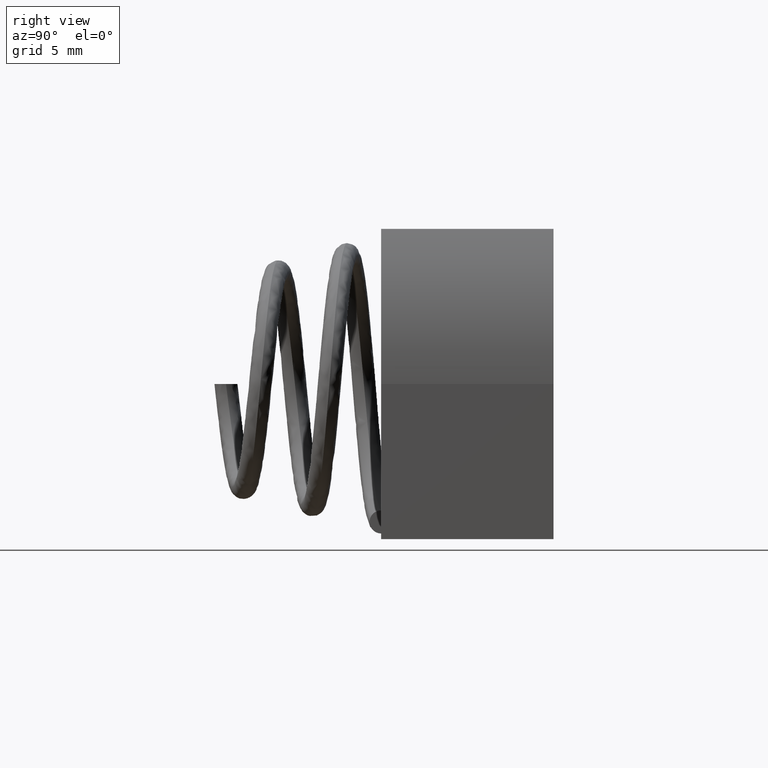
[diagram: clean part render]
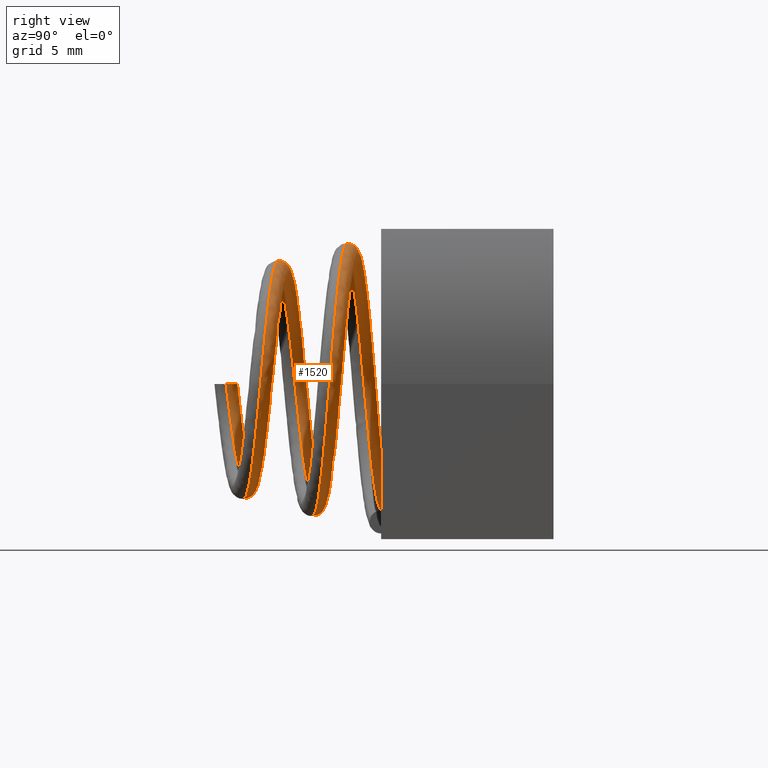
[diagram: same view with one face highlighted and labeled with its STEP entity id]
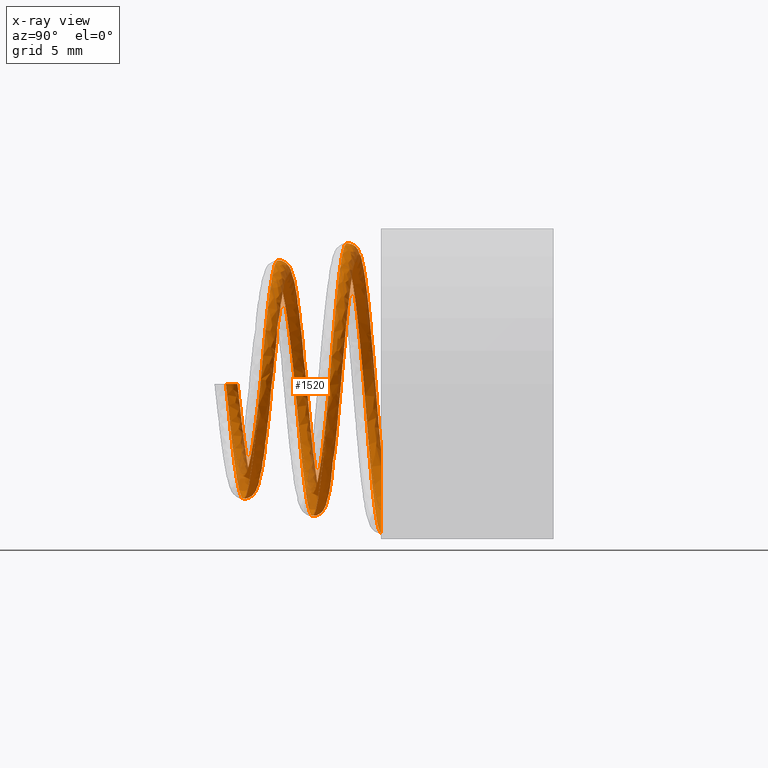
[diagram: x-ray of the same camera — body ghosted, the highlighted face saturated]
A machine part, right view. The second image highlights one B-rep face of the part: STEP entity #1520.
The next image is the same camera in x-ray: the body ghosted, the highlighted face saturated — about 6% of this face is hidden behind the body in this view.
In plain terms, the highlighted face is a freeform B-spline surface patch.
Its self-contained STEP definition (entity closure, byte-faithful):
#10 = CARTESIAN_POINT ( 'NONE',  ( 0.01646834784008086700, -0.4042968749999954500, -0.1671539694218696900 ) ) ;
#11 = CARTESIAN_POINT ( 'NONE',  ( 0.1433215588485929900, -0.3867187500000069900, -0.09575661632387386100 ) ) ;
#12 = CARTESIAN_POINT ( 'NONE',  ( 0.1753029058703783100, -0.3749999999999799000, 7.395882606358802700E-006 ) ) ;
#15 = CARTESIAN_POINT ( 'NONE',  ( 0.1601028446835974800, -0.3828124999999930100, -0.06642710628330854300 ) ) ;
#16 = CARTESIAN_POINT ( 'NONE',  ( -0.1593634679470872000, -0.4355468750000078300, -0.01559766374010203300 ) ) ;
#21 = CARTESIAN_POINT ( 'NONE',  ( -0.1588764992003539000, -0.4375000000000000000, -8.803807010832098000E-017 ) ) ;
#23 = CARTESIAN_POINT ( 'NONE',  ( 0.1139979356253015100, -0.3574218750000123200, 0.1389207215970985900 ) ) ;
#24 = CARTESIAN_POINT ( 'NONE',  ( 0.1568014630587587500, -0.3652343750000073300, 0.08369497619050901600 ) ) ;
#25 = CARTESIAN_POINT ( 'NONE',  ( 0.1691568621261606800, -0.3691406249999926700, 0.05132138286950450900 ) ) ;
#27 = CARTESIAN_POINT ( 'NONE',  ( 0.1327916659264552800, -0.3886718749999882300, -0.1091105794375156100 ) ) ;
#28 = CARTESIAN_POINT ( 'NONE',  ( 0.1084219016303660800, -0.3925781250000117700, -0.1321029881193051000 ) ) ;
#29 = CARTESIAN_POINT ( 'NONE',  ( -0.1575367271959043100, -0.4335937499999997800, -0.03133885051356281900 ) ) ;
#30 = CARTESIAN_POINT ( 'NONE',  ( -0.0001000963912907973600, -0.4062500000000245900, -0.1674645758238921800 ) ) ;
#31 = CARTESIAN_POINT ( 'NONE',  ( 0.1267925840577829900, -0.3593749999999837400, 0.1266458181944495100 ) ) ;
#39 = CARTESIAN_POINT ( 'NONE',  ( 0.01789244994414402100, -0.3457031249999927800, 0.1817640307181987400 ) ) ;
#41 = CARTESIAN_POINT ( 'NONE',  ( 0.09458541679323179100, -0.3945312499999907300, -0.1417389057731912000 ) ) ;
#43 = CARTESIAN_POINT ( 'NONE',  ( -0.09148971898776077400, -0.4179687499999953900, -0.1367455291089631200 ) ) ;
#46 = CARTESIAN_POINT ( 'NONE',  ( 0.1481954964965952500, -0.3632812500000161500, 0.09903106724721180700 ) ) ;
#47 = CARTESIAN_POINT ( 'NONE',  ( 0.04894229102747853900, -0.4003906250000044400, -0.1616875185621940200 ) ) ;
#49 = CARTESIAN_POINT ( 'NONE',  ( 0.03563719470705784700, -0.3476562500000182600, 0.1786236027489670200 ) ) ;
#51 = CARTESIAN_POINT ( 'NONE',  ( -0.1493299340401652300, -0.4296875000000001700, -0.06174813348205712000 ) ) ;
#52 = CARTESIAN_POINT ( 'NONE',  ( 0.1663517138080140000, -0.3808593749999751900, -0.05045499307669388400 ) ) ;
#53 = CARTESIAN_POINT ( 'NONE',  ( 0.06932399300381511500, -0.3515624999999815700, 0.1673870622192267000 ) ) ;
#54 = CARTESIAN_POINT ( 'NONE',  ( 0.08526198071851104300, -0.3535156249999876800, 0.1592928174712949500 ) ) ;
#55 = CARTESIAN_POINT ( 'NONE',  ( 0.1739524570751551600, -0.3769531250000248700, -0.01723571518284860300 ) ) ;
#56 = CARTESIAN_POINT ( 'NONE',  ( -0.1156513839666766700, -0.4218750000000045500, -0.1156566351352014500 ) ) ;
#57 = CARTESIAN_POINT ( 'NONE',  ( -0.01789244994414415300, -0.3417968750000072200, 0.1827379682156123100 ) ) ;
#58 = CARTESIAN_POINT ( 'NONE',  ( 0.1729052002732377700, -0.3710937500000201500, 0.03428810915181882600 ) ) ;
#59 = CARTESIAN_POINT ( 'NONE',  ( -0.07778969644852282200, -0.4160156249999877900, -0.1455431392826600500 ) ) ;
#60 = CARTESIAN_POINT ( 'NONE',  ( -0.1429504418552627900, -0.4277343749999921200, -0.07641229136471203200 ) ) ;
#61 = CARTESIAN_POINT ( 'NONE',  ( -0.03247708238856444900, -0.4101562499999754600, -0.1632970710755766700 ) ) ;
#62 = CARTESIAN_POINT ( 'NONE',  ( -0.04828162861966942000, -0.4121093750000121600, -0.1588199635233168400 ) ) ;
#64 = CARTESIAN_POINT ( 'NONE',  ( -0.1261103172015429200, -0.4238281250000079400, -0.1033683601393971900 ) ) ;
#68 = CARTESIAN_POINT ( 'NONE',  ( 0.06484364002630364800, -0.3984375000000092100, -0.1565318805518530500 ) ) ;
#72 = CARTESIAN_POINT ( 'NONE',  ( 0.0000000000000000000, -0.1562500000000000000, -0.2290000000000000100 ) ) ;
#73 = CARTESIAN_POINT ( 'NONE',  ( -0.1588764992003539000, -0.4375000000000000000, -8.803807010832098000E-017 ) ) ;
#88 = CARTESIAN_POINT ( 'NONE',  ( -0.2008764992003539100, -0.4375000000000000000, -1.104477606813481500E-016 ) ) ;
#111 = CARTESIAN_POINT ( 'NONE',  ( -0.05306193203218853600, -0.1601562499999838500, -0.2660803261832042100 ) ) ;
#115 = CARTESIAN_POINT ( 'NONE',  ( 0.0000000000000000000, -0.1562500000000000000, -0.2710000000000000200 ) ) ;
#116 = CARTESIAN_POINT ( 'NONE',  ( -0.02660536296691237400, -0.1582031249999878700, -0.2705130312352578800 ) ) ;
#121 = CARTESIAN_POINT ( 'NONE',  ( -0.1034242056314976500, -0.1640625000000161800, -0.2497853355170725800 ) ) ;
#122 = CARTESIAN_POINT ( 'NONE',  ( -0.1273237614408581400, -0.1660156250000048000, -0.2379255495065815700 ) ) ;
#123 = CARTESIAN_POINT ( 'NONE',  ( -0.1705487607158156500, -0.1699218749999952300, -0.2078721836928000600 ) ) ;
#124 = CARTESIAN_POINT ( 'NONE',  ( -0.1898690758623521600, -0.1718750000000052500, -0.1896827607444656600 ) ) ;
#125 = CARTESIAN_POINT ( 'NONE',  ( -0.2223268149671870600, -0.1757812499999947800, -0.1485976645260630700 ) ) ;
#126 = CARTESIAN_POINT ( 'NONE',  ( -0.2354605608290149500, -0.1777343750000074100, -0.1257074300930825000 ) ) ;
#127 = CARTESIAN_POINT ( 'NONE',  ( -0.2544845346026311500, -0.1816406249999926400, -0.07723447325288569600 ) ) ;
#128 = CARTESIAN_POINT ( 'NONE',  ( -0.2603728353240704100, -0.1835937500000075200, -0.05165799008487498300 ) ) ;
#129 = CARTESIAN_POINT ( 'NONE',  ( -0.2644785704954708500, -0.1874999999999925300, -3.536142827226400200E-005 ) ) ;
#130 = CARTESIAN_POINT ( 'NONE',  ( -0.2626959754071263000, -0.1894531250000115500, 0.02600428970217095000 ) ) ;
#131 = CARTESIAN_POINT ( 'NONE',  ( -0.2516956222227664200, -0.1933593749999884500, 0.07631456074259544700 ) ) ;
#132 = CARTESIAN_POINT ( 'NONE',  ( -0.2424797140836233400, -0.1953125000000070200, 0.1005789925040637400 ) ) ;
#133 = CARTESIAN_POINT ( 'NONE',  ( -0.2174839509681737700, -0.1992187499999929800, 0.1452767085988618300 ) ) ;
#134 = CARTESIAN_POINT ( 'NONE',  ( -0.2017076457180922700, -0.2011718750000233400, 0.1657046398511989000 ) ) ;
#135 = CARTESIAN_POINT ( 'NONE',  ( -0.1650159620396942100, -0.2050781249999766600, 0.2010189679065875200 ) ) ;
#136 = CARTESIAN_POINT ( 'NONE',  ( -0.1441055090712918500, -0.2070312499999989200, 0.2159012978987465700 ) ) ;
#137 = CARTESIAN_POINT ( 'NONE',  ( -0.09899552624398655400, -0.2109375000000010800, 0.2389087499459044400 ) ) ;
#138 = CARTESIAN_POINT ( 'NONE',  ( -0.07480185869471701900, -0.2128906249999948900, 0.2470314269853637600 ) ) ;
#139 = CARTESIAN_POINT ( 'NONE',  ( -0.02523692235806620400, -0.2167968750000051300, 0.2558974877454234800 ) ) ;
#140 = CARTESIAN_POINT ( 'NONE',  ( 0.0001280619380908057800, -0.2187499999999933900, 0.2566402404551608700 ) ) ;
#141 = CARTESIAN_POINT ( 'NONE',  ( 0.04984696332048670100, -0.2226562500000065500, 0.2507647061202332200 ) ) ;
#142 = CARTESIAN_POINT ( 'NONE',  ( 0.07419471900578530900, -0.2246093749999944500, 0.2441476360046161100 ) ) ;
#143 = CARTESIAN_POINT ( 'NONE',  ( 0.1198021503483617900, -0.2285156250000055000, 0.2242022370480874500 ) ) ;
#144 = CARTESIAN_POINT ( 'NONE',  ( 0.1410563162700959100, -0.2304687500000073800, 0.2108768475825315300 ) ) ;
#145 = CARTESIAN_POINT ( 'NONE',  ( 0.1786883265132090700, -0.2343749999999925900, 0.1787331269367939100 ) ) ;
#146 = CARTESIAN_POINT ( 'NONE',  ( 0.1950617793028370200, -0.2363281250000075500, 0.1599191852324275700 ) ) ;
#147 = CARTESIAN_POINT ( 'NONE',  ( 0.2215831738849569100, -0.2402343749999924200, 0.1184740720845426200 ) ) ;
#148 = CARTESIAN_POINT ( 'NONE',  ( 0.2317282073445611200, -0.2421874999999912800, 0.09584834611047328400 ) ) ;
#149 = CARTESIAN_POINT ( 'NONE',  ( 0.2449934506235916500, -0.2460937500000086900, 0.04876358783795971300 ) ) ;
#150 = CARTESIAN_POINT ( 'NONE',  ( 0.2481124684821743600, -0.2480468750000111300, 0.02431057648873476800 ) ) ;
#151 = CARTESIAN_POINT ( 'NONE',  ( 0.2471385309847311300, -0.2519531249999888400, -0.02431057648873467500 ) ) ;
#152 = CARTESIAN_POINT ( 'NONE',  ( 0.2430461827763703800, -0.2539062499999868400, -0.04847264624799783900 ) ) ;
#153 = CARTESIAN_POINT ( 'NONE',  ( 0.2280834746586219200, -0.2578125000000131600, -0.09444297288397020300 ) ) ;
#154 = CARTESIAN_POINT ( 'NONE',  ( 0.2172154479254882500, -0.2597656249999947800, -0.1162456298779833400 ) ) ;
#155 = CARTESIAN_POINT ( 'NONE',  ( 0.1897119119251098300, -0.2636718750000052700, -0.1556545391590854800 ) ) ;
#156 = CARTESIAN_POINT ( 'NONE',  ( 0.1730802410287569400, -0.2656250000000088300, -0.1732561397708807000 ) ) ;
#157 = CARTESIAN_POINT ( 'NONE',  ( 0.1355429322622141700, -0.2695312499999911700, -0.2028022849623161700 ) ) ;
#158 = CARTESIAN_POINT ( 'NONE',  ( 0.1146422900923261700, -0.2714843749999942800, -0.2147435151073702800 ) ) ;
#159 = CARTESIAN_POINT ( 'NONE',  ( 0.07040954527000023400, -0.2753906250000057200, -0.2320111355663905000 ) ) ;
#160 = CARTESIAN_POINT ( 'NONE',  ( 0.04708315222875729400, -0.2773437499999892900, -0.2373358180438084300 ) ) ;
#161 = CARTESIAN_POINT ( 'NONE',  ( 2.799593887078556200E-005, -0.2812500000000106600, -0.2409916964580068600 ) ) ;
#162 = CARTESIAN_POINT ( 'NONE',  ( -0.02369484345020329100, -0.2832031249999882900, -0.2393229190262614600 ) ) ;
#163 = CARTESIAN_POINT ( 'NONE',  ( -0.06950372942662959300, -0.2871093750000117100, -0.2292179470072094000 ) ) ;
#164 = CARTESIAN_POINT ( 'NONE',  ( -0.09158415010608471400, -0.2890624999999935600, -0.2207834905264273200 ) ) ;
#165 = CARTESIAN_POINT ( 'NONE',  ( -0.1322342246956632300, -0.2929687500000064400, -0.1979512368682012100 ) ) ;
#166 = CARTESIAN_POINT ( 'NONE',  ( -0.1507990310933780800, -0.2949218750000244800, -0.1835567191847132200 ) ) ;
#167 = CARTESIAN_POINT ( 'NONE',  ( -0.1828680413737636700, -0.2988281249999755200, -0.1501103532824286400 ) ) ;
#168 = CARTESIAN_POINT ( 'NONE',  ( -0.1963685837966685200, -0.3007812499999891800, -0.1310630251667653500 ) ) ;
#169 = CARTESIAN_POINT ( 'NONE',  ( -0.2172125263908138700, -0.3046875000000107700, -0.09000068384733558900 ) ) ;
#170 = CARTESIAN_POINT ( 'NONE',  ( -0.2245537517644171400, -0.3066406250000048800, -0.06799102737734032100 ) ) ;
#171 = CARTESIAN_POINT ( 'NONE',  ( -0.2325244313699482400, -0.3105468749999950600, -0.02292747610750940300 ) ) ;
#172 = CARTESIAN_POINT ( 'NONE',  ( -0.2331533664156388900, -0.3125000000000124300, 0.0001206964490540887900 ) ) ;
#173 = CARTESIAN_POINT ( 'NONE',  ( -0.2277276888420291800, -0.3164062499999875100, 0.04527212546400410200 ) ) ;
#174 = CARTESIAN_POINT ( 'NONE',  ( -0.2216742369628042800, -0.3183593750000003300, 0.06736979102137340100 ) ) ;
#175 = CARTESIAN_POINT ( 'NONE',  ( -0.2034851913320140100, -0.3222656249999996100, 0.1087370103491318200 ) ) ;
#176 = CARTESIAN_POINT ( 'NONE',  ( -0.1913523175745849600, -0.3242187499999710800, 0.1280015840048499600 ) ) ;
#177 = CARTESIAN_POINT ( 'NONE',  ( -0.1621201908483985400, -0.3281250000000288700, 0.1620858067988970600 ) ) ;
#178 = CARTESIAN_POINT ( 'NONE',  ( -0.1450249636748774100, -0.3300781250000239300, 0.1769015075358591200 ) ) ;
#179 = CARTESIAN_POINT ( 'NONE',  ( -0.1073959405224880200, -0.3339843749999760200, 0.2008730723031511800 ) ) ;
#180 = CARTESIAN_POINT ( 'NONE',  ( -0.08686711336033775500, -0.3359374999999696400, 0.2100263464821601500 ) ) ;
#181 = CARTESIAN_POINT ( 'NONE',  ( -0.04417430205637767200, -0.3398437500000303100, 0.2219593072207079200 ) ) ;
#182 = CARTESIAN_POINT ( 'NONE',  ( -0.02201579028165777000, -0.3417968750000072200, 0.2247379682156123200 ) ) ;
#183 = CARTESIAN_POINT ( 'NONE',  ( 0.02201579028165761100, -0.3457031249999927800, 0.2237640307181987300 ) ) ;
#184 = CARTESIAN_POINT ( 'NONE',  ( 0.04388336046505766900, -0.3476562500000182600, 0.2200120393687446400 ) ) ;
#185 = CARTESIAN_POINT ( 'NONE',  ( 0.08546174013519015900, -0.3515624999999815700, 0.2063816138009546000 ) ) ;
#186 = CARTESIAN_POINT ( 'NONE',  ( 0.1051674983139349700, -0.3535156249999876800, 0.1965053463398525600 ) ) ;
#187 = CARTESIAN_POINT ( 'NONE',  ( 0.1407603176035241400, -0.3574218750000123200, 0.1715516401619547900 ) ) ;
#188 = CARTESIAN_POINT ( 'NONE',  ( 0.1566432036810672400, -0.3593749999999837400, 0.1564777213123986500 ) ) ;
#189 = CARTESIAN_POINT ( 'NONE',  ( 0.1832777549557809100, -0.3632812500000161500, 0.1224881999990088700 ) ) ;
#190 = CARTESIAN_POINT ( 'NONE',  ( 0.1940264693914555400, -0.3652343750000073300, 0.1035771500922874100 ) ) ;
#191 = CARTESIAN_POINT ( 'NONE',  ( 0.2095377365244119100, -0.3691406249999926700, 0.06358461728639375200 ) ) ;
#192 = CARTESIAN_POINT ( 'NONE',  ( 0.2142988007651120700, -0.3710937500000201500, 0.04250831437111036300 ) ) ;
#193 = CARTESIAN_POINT ( 'NONE',  ( 0.2175048224189685100, -0.3749999999999799000, 2.063045099792120300E-005 ) ) ;
#194 = CARTESIAN_POINT ( 'NONE',  ( 0.2159498626460127900, -0.3769531250000248700, -0.02138539719996944800 ) ) ;
#195 = CARTESIAN_POINT ( 'NONE',  ( 0.2067402717910277200, -0.3808593749999751900, -0.06269289810892771100 ) ) ;
#196 = CARTESIAN_POINT ( 'NONE',  ( 0.1990872669652612700, -0.3828124999999930100, -0.08258930770785528900 ) ) ;
#197 = CARTESIAN_POINT ( 'NONE',  ( 0.1784185227721910300, -0.3867187500000069900, -0.1191917407927108900 ) ) ;
#198 = CARTESIAN_POINT ( 'NONE',  ( 0.1654057926485474600, -0.3886718749999882300, -0.1358934223351119500 ) ) ;
#199 = CARTESIAN_POINT ( 'NONE',  ( 0.1352047445279439500, -0.3925781250000117700, -0.1647171148413786300 ) ) ;
#200 = CARTESIAN_POINT ( 'NONE',  ( 0.1180205412615353300, -0.3945312499999907300, -0.1768358696970584200 ) ) ;
#201 = CARTESIAN_POINT ( 'NONE',  ( 0.08100584145138398100, -0.3984375000000092100, -0.1955163028332475800 ) ) ;
#202 = CARTESIAN_POINT ( 'NONE',  ( 0.06118019605854481400, -0.4003906250000044400, -0.2020760765454431000 ) ) ;
#203 = CARTESIAN_POINT ( 'NONE',  ( 0.02061802985836934400, -0.4042968749999954500, -0.2091513749924919200 ) ) ;
#204 = CARTESIAN_POINT ( 'NONE',  ( -0.0001133309614404597300, -0.4062500000000245900, -0.2096664923723078300 ) ) ;
#205 = CARTESIAN_POINT ( 'NONE',  ( -0.04069728760609780300, -0.4101562499999754600, -0.2046906715676255500 ) ) ;
#206 = CARTESIAN_POINT ( 'NONE',  ( -0.06054486303874173600, -0.4121093750000121600, -0.1992008379206596800 ) ) ;
#207 = CARTESIAN_POINT ( 'NONE',  ( -0.09767187034811805600, -0.4160156249999877900, -0.1827681456162653100 ) ) ;
#208 = CARTESIAN_POINT ( 'NONE',  ( -0.1149468517418494700, -0.4179687499999953900, -0.1718277875662570000 ) ) ;
#209 = CARTESIAN_POINT ( 'NONE',  ( -0.1454832870823341300, -0.4218750000000045500, -0.1455072547603775400 ) ) ;
#210 = CARTESIAN_POINT ( 'NONE',  ( -0.1587412357683678500, -0.4238281250000079400, -0.1301307421146620500 ) ) ;
#211 = CARTESIAN_POINT ( 'NONE',  ( -0.1801629707218516400, -0.4277343749999921200, -0.09631780896309377600 ) ) ;
#212 = CARTESIAN_POINT ( 'NONE',  ( -0.1883244856231218700, -0.4296875000000001700, -0.07788588060946245700 ) ) ;
#213 = CARTESIAN_POINT ( 'NONE',  ( -0.1989251638144531900, -0.4335937499999997800, -0.03958501627553243800 ) ) ;
#214 = CARTESIAN_POINT ( 'NONE',  ( -0.2013634679470784100, -0.4355468750000078300, -0.01972100407288566000 ) ) ;
#215 = CARTESIAN_POINT ( 'NONE',  ( -0.2008764992003539100, -0.4375000000000000000, -1.109813247426107000E-016 ) ) ;
#216 = CARTESIAN_POINT ( 'NONE',  ( 0.0000000000000000000, -0.1142500000000000500, -0.2710000000000000200 ) ) ;
#217 = CARTESIAN_POINT ( 'NONE',  ( -0.02660536296691237400, -0.1162031249999879400, -0.2705130312352579400 ) ) ;
#218 = CARTESIAN_POINT ( 'NONE',  ( -0.05306193203218856300, -0.1181562499999838900, -0.2660803261832042600 ) ) ;
#219 = CARTESIAN_POINT ( 'NONE',  ( -0.1034242056314976500, -0.1220625000000162300, -0.2497853355170726300 ) ) ;
#220 = CARTESIAN_POINT ( 'NONE',  ( -0.1273237614408581400, -0.1240156250000048600, -0.2379255495065815700 ) ) ;
#221 = CARTESIAN_POINT ( 'NONE',  ( -0.1705487607158157100, -0.1279218749999952700, -0.2078721836928000300 ) ) ;
#222 = CARTESIAN_POINT ( 'NONE',  ( -0.1898690758623521900, -0.1298750000000052900, -0.1896827607444657200 ) ) ;
#223 = CARTESIAN_POINT ( 'NONE',  ( -0.2223268149671870900, -0.1337812499999948300, -0.1485976645260631000 ) ) ;
#224 = CARTESIAN_POINT ( 'NONE',  ( -0.2354605608290149800, -0.1357343750000074600, -0.1257074300930825000 ) ) ;
#225 = CARTESIAN_POINT ( 'NONE',  ( -0.2544845346026311500, -0.1396406249999926600, -0.07723447325288569600 ) ) ;
#226 = CARTESIAN_POINT ( 'NONE',  ( -0.2603728353240704100, -0.1415937500000075400, -0.05165799008487498300 ) ) ;
#227 = CARTESIAN_POINT ( 'NONE',  ( -0.2644785704954709100, -0.1454999999999926100, -3.536142827226400200E-005 ) ) ;
#228 = CARTESIAN_POINT ( 'NONE',  ( -0.2626959754071263000, -0.1474531250000115900, 0.02600428970217236500 ) ) ;
#229 = CARTESIAN_POINT ( 'NONE',  ( -0.2516956222227664200, -0.1513593749999884700, 0.07631456074259405900 ) ) ;
#230 = CARTESIAN_POINT ( 'NONE',  ( -0.2424797140836234300, -0.1533125000000070700, 0.1005789925040637600 ) ) ;
#231 = CARTESIAN_POINT ( 'NONE',  ( -0.2174839509681738000, -0.1572187499999930200, 0.1452767085988618500 ) ) ;
#232 = CARTESIAN_POINT ( 'NONE',  ( -0.2017076457180922700, -0.1591718750000233900, 0.1657046398511989000 ) ) ;
#233 = CARTESIAN_POINT ( 'NONE',  ( -0.1650159620396942100, -0.1630781249999767000, 0.2010189679065875200 ) ) ;
#234 = CARTESIAN_POINT ( 'NONE',  ( -0.1441055090712918500, -0.1650312499999989600, 0.2159012978987466200 ) ) ;
#235 = CARTESIAN_POINT ( 'NONE',  ( -0.09899552624398658100, -0.1689375000000011300, 0.2389087499459045200 ) ) ;
#236 = CARTESIAN_POINT ( 'NONE',  ( -0.07480185869471701900, -0.1708906249999949400, 0.2470314269853637900 ) ) ;
#237 = CARTESIAN_POINT ( 'NONE',  ( -0.02523692235806621100, -0.1747968750000051300, 0.2558974877454234800 ) ) ;
#238 = CARTESIAN_POINT ( 'NONE',  ( 0.0001280619380908100600, -0.1767499999999934400, 0.2566402404551608700 ) ) ;
#239 = CARTESIAN_POINT ( 'NONE',  ( 0.04984696332048670800, -0.1806562500000066000, 0.2507647061202332700 ) ) ;
#240 = CARTESIAN_POINT ( 'NONE',  ( 0.07419471900578532300, -0.1826093749999944900, 0.2441476360046161700 ) ) ;
#241 = CARTESIAN_POINT ( 'NONE',  ( 0.1198021503483618100, -0.1865156250000055700, 0.2242022370480874500 ) ) ;
#242 = CARTESIAN_POINT ( 'NONE',  ( 0.1410563162701014000, -0.1884687500000074000, 0.2108768475825315800 ) ) ;
#243 = CARTESIAN_POINT ( 'NONE',  ( 0.1786883265132036500, -0.1923749999999926600, 0.1787331269367939700 ) ) ;
#244 = CARTESIAN_POINT ( 'NONE',  ( 0.1950617793028370200, -0.1943281250000075700, 0.1599191852324275700 ) ) ;
#245 = CARTESIAN_POINT ( 'NONE',  ( 0.2215831738849569100, -0.1982343749999925000, 0.1184740720845426500 ) ) ;
#246 = CARTESIAN_POINT ( 'NONE',  ( 0.2317282073445665900, -0.2001874999999967400, 0.09584834611047328400 ) ) ;
#247 = CARTESIAN_POINT ( 'NONE',  ( 0.2449934506235863200, -0.2040937500000033500, 0.04876358783795972700 ) ) ;
#248 = CARTESIAN_POINT ( 'NONE',  ( 0.2481124684821744100, -0.2060468750000112000, 0.02431057648873476800 ) ) ;
#249 = CARTESIAN_POINT ( 'NONE',  ( 0.2471385309847312100, -0.2099531249999889200, -0.02431057648873467500 ) ) ;
#250 = CARTESIAN_POINT ( 'NONE',  ( 0.2430461827763704100, -0.2119062499999868900, -0.04847264624799786000 ) ) ;
#251 = CARTESIAN_POINT ( 'NONE',  ( 0.2280834746586219400, -0.2158125000000132300, -0.09444297288397021700 ) ) ;
#252 = CARTESIAN_POINT ( 'NONE',  ( 0.2172154479254935800, -0.2177656249999948000, -0.1162456298779833700 ) ) ;
#253 = CARTESIAN_POINT ( 'NONE',  ( 0.1897119119251045900, -0.2216718750000053200, -0.1556545391590855000 ) ) ;
#254 = CARTESIAN_POINT ( 'NONE',  ( 0.1730802410287569400, -0.2236250000000036300, -0.1732561397708807000 ) ) ;
#255 = CARTESIAN_POINT ( 'NONE',  ( 0.1355429322622142300, -0.2275312499999964900, -0.2028022849623162000 ) ) ;
#256 = CARTESIAN_POINT ( 'NONE',  ( 0.1146422900923262100, -0.2294843749999995700, -0.2147435151073703300 ) ) ;
#257 = CARTESIAN_POINT ( 'NONE',  ( 0.07040954527000026200, -0.2333906250000005200, -0.2320111355663905300 ) ) ;
#258 = CARTESIAN_POINT ( 'NONE',  ( 0.04708315222875729400, -0.2353437499999789200, -0.2373358180438084900 ) ) ;
#259 = CARTESIAN_POINT ( 'NONE',  ( 2.799593887078983400E-005, -0.2392500000000211400, -0.2409916964580069200 ) ) ;
#260 = CARTESIAN_POINT ( 'NONE',  ( -0.02369484345020328800, -0.2412031249999987100, -0.2393229190262614900 ) ) ;
#261 = CARTESIAN_POINT ( 'NONE',  ( -0.06950372942662959300, -0.2451093750000014100, -0.2292179470072094000 ) ) ;
#262 = CARTESIAN_POINT ( 'NONE',  ( -0.09158415010608471400, -0.2470624999999936300, -0.2207834905264273700 ) ) ;
#263 = CARTESIAN_POINT ( 'NONE',  ( -0.1322342246956632300, -0.2509687500000065100, -0.1979512368682012400 ) ) ;
#264 = CARTESIAN_POINT ( 'NONE',  ( -0.1507990310933781400, -0.2529218750000347700, -0.1835567191847132000 ) ) ;
#265 = CARTESIAN_POINT ( 'NONE',  ( -0.1828680413737636700, -0.2568281249999652700, -0.1501103532824286400 ) ) ;
#266 = CARTESIAN_POINT ( 'NONE',  ( -0.1963685837966685800, -0.2587812499999994100, -0.1310630251667653500 ) ) ;
#267 = CARTESIAN_POINT ( 'NONE',  ( -0.2172125263908138100, -0.2626875000000005700, -0.09000068384733558900 ) ) ;
#268 = CARTESIAN_POINT ( 'NONE',  ( -0.2245537517644171600, -0.2646406250000150100, -0.06799102737734033500 ) ) ;
#269 = CARTESIAN_POINT ( 'NONE',  ( -0.2325244313699482700, -0.2685468749999850300, -0.02292747610750941000 ) ) ;
#270 = CARTESIAN_POINT ( 'NONE',  ( -0.2331533664156339400, -0.2705000000000124500, 0.0001206964490540802500 ) ) ;
#271 = CARTESIAN_POINT ( 'NONE',  ( -0.2277276888420342300, -0.2744062499999875800, 0.04527212546400410900 ) ) ;
#272 = CARTESIAN_POINT ( 'NONE',  ( -0.2216742369628042800, -0.2763593750000004600, 0.06736979102137589900 ) ) ;
#273 = CARTESIAN_POINT ( 'NONE',  ( -0.2034851913320140100, -0.2802656249999995700, 0.1087370103491293200 ) ) ;
#274 = CARTESIAN_POINT ( 'NONE',  ( -0.1913523175745799600, -0.2822187499999760900, 0.1280015840048474900 ) ) ;
#275 = CARTESIAN_POINT ( 'NONE',  ( -0.1621201908484035400, -0.2861250000000240000, 0.1620858067988995600 ) ) ;
#276 = CARTESIAN_POINT ( 'NONE',  ( -0.1450249636748774100, -0.2880781250000289400, 0.1769015075358591200 ) ) ;
#277 = CARTESIAN_POINT ( 'NONE',  ( -0.1073959405224880300, -0.2919843749999711000, 0.2008730723031512400 ) ) ;
#278 = CARTESIAN_POINT ( 'NONE',  ( -0.08686711336033899100, -0.2939374999999745900, 0.2100263464821601500 ) ) ;
#279 = CARTESIAN_POINT ( 'NONE',  ( -0.04417430205637645100, -0.2978437500000255000, 0.2219593072207079700 ) ) ;
#280 = CARTESIAN_POINT ( 'NONE',  ( -0.02201579028165776700, -0.2997968750000072900, 0.2247379682156123200 ) ) ;
#281 = CARTESIAN_POINT ( 'NONE',  ( 0.02201579028165761100, -0.3037031249999927500, 0.2237640307181987500 ) ) ;
#282 = CARTESIAN_POINT ( 'NONE',  ( 0.04388336046505768300, -0.3056562500000280000, 0.2200120393687446700 ) ) ;
#283 = CARTESIAN_POINT ( 'NONE',  ( 0.08546174013519015900, -0.3095624999999719300, 0.2063816138009546300 ) ) ;
#284 = CARTESIAN_POINT ( 'NONE',  ( 0.1051674983139349700, -0.3115156249999973000, 0.1965053463398526200 ) ) ;
#285 = CARTESIAN_POINT ( 'NONE',  ( 0.1407603176035241400, -0.3154218750000026800, 0.1715516401619548200 ) ) ;
#286 = CARTESIAN_POINT ( 'NONE',  ( 0.1566432036810672900, -0.3173749999999838100, 0.1564777213124010600 ) ) ;
#287 = CARTESIAN_POINT ( 'NONE',  ( 0.1832777549557809400, -0.3212812500000162300, 0.1224881999990064900 ) ) ;
#288 = CARTESIAN_POINT ( 'NONE',  ( 0.1940264693914555700, -0.3232343749999883100, 0.1035771500922874100 ) ) ;
#289 = CARTESIAN_POINT ( 'NONE',  ( 0.2095377365244119100, -0.3271406250000117300, 0.06358461728639373800 ) ) ;
#290 = CARTESIAN_POINT ( 'NONE',  ( 0.2142988007651073800, -0.3290937500000389900, 0.04250831437111036300 ) ) ;
#291 = CARTESIAN_POINT ( 'NONE',  ( 0.2175048224189732900, -0.3329999999999610500, 2.063045099792120600E-005 ) ) ;
#292 = CARTESIAN_POINT ( 'NONE',  ( 0.2159498626460128200, -0.3349531250000060700, -0.02138539719996944800 ) ) ;
#293 = CARTESIAN_POINT ( 'NONE',  ( 0.2067402717910277700, -0.3388593749999939700, -0.06269289810892772500 ) ) ;
#294 = CARTESIAN_POINT ( 'NONE',  ( 0.1990872669652612700, -0.3408124999999930200, -0.08258930770785762000 ) ) ;
#295 = CARTESIAN_POINT ( 'NONE',  ( 0.1784185227721910300, -0.3447187500000070100, -0.1191917407927085600 ) ) ;
#296 = CARTESIAN_POINT ( 'NONE',  ( 0.1654057926485474900, -0.3466718749999697600, -0.1358934223351142800 ) ) ;
#297 = CARTESIAN_POINT ( 'NONE',  ( 0.1352047445279439500, -0.3505781250000303300, -0.1647171148413763300 ) ) ;
#298 = CARTESIAN_POINT ( 'NONE',  ( 0.1180205412615353600, -0.3525312499999906900, -0.1768358696970585000 ) ) ;
#299 = CARTESIAN_POINT ( 'NONE',  ( 0.08100584145138398100, -0.3564375000000092900, -0.1955163028332476400 ) ) ;
#300 = CARTESIAN_POINT ( 'NONE',  ( 0.06118019605854595200, -0.3583906249999862500, -0.2020760765454431300 ) ) ;
#301 = CARTESIAN_POINT ( 'NONE',  ( 0.02061802985836821300, -0.3622968750000139000, -0.2091513749924919500 ) ) ;
#302 = CARTESIAN_POINT ( 'NONE',  ( -0.0001133309614398963000, -0.3642500000000246100, -0.2096664923723033400 ) ) ;
#303 = CARTESIAN_POINT ( 'NONE',  ( -0.04069728760609837800, -0.3681562499999754800, -0.2046906715676301600 ) ) ;
#304 = CARTESIAN_POINT ( 'NONE',  ( -0.06054486303874400500, -0.3701093750000122300, -0.1992008379206597100 ) ) ;
#305 = CARTESIAN_POINT ( 'NONE',  ( -0.09767187034811582200, -0.3740156249999878600, -0.1827681456162653100 ) ) ;
#306 = CARTESIAN_POINT ( 'NONE',  ( -0.1149468517418494700, -0.3759687499999774800, -0.1718277875662570000 ) ) ;
#307 = CARTESIAN_POINT ( 'NONE',  ( -0.1454832870823341600, -0.3798750000000225600, -0.1455072547603775400 ) ) ;
#308 = CARTESIAN_POINT ( 'NONE',  ( -0.1587412357683678500, -0.3818281249999900800, -0.1301307421146620800 ) ) ;
#309 = CARTESIAN_POINT ( 'NONE',  ( -0.1801629707218516100, -0.3857343750000100100, -0.09631780896309379000 ) ) ;
#310 = CARTESIAN_POINT ( 'NONE',  ( -0.1883244856231218700, -0.3876875000000002400, -0.07788588060946245700 ) ) ;
#311 = CARTESIAN_POINT ( 'NONE',  ( -0.1989251638144532200, -0.3915937499999999100, -0.03958501627553243800 ) ) ;
#312 = CARTESIAN_POINT ( 'NONE',  ( -0.2013634679470828500, -0.3935468750000079000, -0.01972100407288566300 ) ) ;
#313 = CARTESIAN_POINT ( 'NONE',  ( -0.2008764992003539400, -0.3955000000000000200, -1.104477606813481200E-016 ) ) ;
#314 = CARTESIAN_POINT ( 'NONE',  ( 0.0000000000000000000, -0.1142500000000000500, -0.2289999999999999800 ) ) ;
#315 = CARTESIAN_POINT ( 'NONE',  ( -0.02248202258089622100, -0.1162031249999879400, -0.2285130312352696100 ) ) ;
#316 = CARTESIAN_POINT ( 'NONE',  ( -0.04481576628023894300, -0.1181562499999838900, -0.2246918895615955500 ) ) ;
#317 = CARTESIAN_POINT ( 'NONE',  ( -0.08728645849407244700, -0.1220625000000162600, -0.2107907839371757600 ) ) ;
#318 = CARTESIAN_POINT ( 'NONE',  ( -0.1074182438507906300, -0.1240156250000048600, -0.2007130206344521500 ) ) ;
#319 = CARTESIAN_POINT ( 'NONE',  ( -0.1437863787322366000, -0.1279218749999952700, -0.1752412651315156100 ) ) ;
#320 = CARTESIAN_POINT ( 'NONE',  ( -0.1600184562432174500, -0.1298750000000052900, -0.1598508576214529000 ) ) ;
#321 = CARTESIAN_POINT ( 'NONE',  ( -0.1872445565038519100, -0.1337812499999948300, -0.1251405317793296600 ) ) ;
#322 = CARTESIAN_POINT ( 'NONE',  ( -0.1982355544988703400, -0.1357343750000074600, -0.1058252561851494400 ) ) ;
#323 = CARTESIAN_POINT ( 'NONE',  ( -0.2141036602018277200, -0.1396406249999926600, -0.06497123884215119700 ) ) ;
#324 = CARTESIAN_POINT ( 'NONE',  ( -0.2189792348328568900, -0.1415937500000075400, -0.04343778485883338000 ) ) ;
#325 = CARTESIAN_POINT ( 'NONE',  ( -0.2222766539462198400, -0.1454999999999926100, -2.212686663075863900E-005 ) ) ;
#326 = CARTESIAN_POINT ( 'NONE',  ( -0.2206985698349251700, -0.1474531250000115900, 0.02185460769182937700 ) ) ;
#327 = CARTESIAN_POINT ( 'NONE',  ( -0.2113070642410961900, -0.1513593749999884700, 0.06407665570358225800 ) ) ;
#328 = CARTESIAN_POINT ( 'NONE',  ( -0.2034952917986522500, -0.1533125000000070700, 0.08441679108570740400 ) ) ;
#329 = CARTESIAN_POINT ( 'NONE',  ( -0.1823869870478830600, -0.1572187499999930200, 0.1218415841238343500 ) ) ;
#330 = CARTESIAN_POINT ( 'NONE',  ( -0.1690935189909429600, -0.1591718750000233900, 0.1389217969586726000 ) ) ;
#331 = CARTESIAN_POINT ( 'NONE',  ( -0.1382331191471735400, -0.1630781249999767000, 0.1684048411794438200 ) ) ;
#332 = CARTESIAN_POINT ( 'NONE',  ( -0.1206703845965610300, -0.1650312499999989600, 0.1808043339783045300 ) ) ;
#333 = CARTESIAN_POINT ( 'NONE',  ( -0.08283332482533360700, -0.1689375000000011300, 0.1999243276610847000 ) ) ;
#334 = CARTESIAN_POINT ( 'NONE',  ( -0.06256395365637045000, -0.1708906249999949400, 0.2066428690035588300 ) ) ;
#335 = CARTESIAN_POINT ( 'NONE',  ( -0.02108724034705797300, -0.1747968750000051300, 0.2139000821733570700 ) ) ;
#336 = CARTESIAN_POINT ( 'NONE',  ( 0.0001148273754530637400, -0.1767499999999934400, 0.2144383239060105600 ) ) ;
#337 = CARTESIAN_POINT ( 'NONE',  ( 0.04162675809544135600, -0.1806562500000066000, 0.2093711056289190300 ) ) ;
#338 = CARTESIAN_POINT ( 'NONE',  ( 0.06193148459381210600, -0.1826093749999944900, 0.2037667616043268300 ) ) ;
#339 = CARTESIAN_POINT ( 'NONE',  ( 0.09991997644166747400, -0.1865156250000055700, 0.1869772307174285800 ) ) ;
#340 = CARTESIAN_POINT ( 'NONE',  ( 0.1175991835220587100, -0.1884687500000074000, 0.1757945891202508900 ) ) ;
#341 = CARTESIAN_POINT ( 'NONE',  ( 0.1488564233915001800, -0.1923749999999926600, 0.1488825073166046300 ) ) ;
#342 = CARTESIAN_POINT ( 'NONE',  ( 0.1624308607404503500, -0.1943281250000075700, 0.1331568032505206500 ) ) ;
#343 = CARTESIAN_POINT ( 'NONE',  ( 0.1843706450139298300, -0.1982343749999925000, 0.09856855449280296800 ) ) ;
#344 = CARTESIAN_POINT ( 'NONE',  ( 0.1927336557639801900, -0.2001874999999967400, 0.07971059897530204100 ) ) ;
#345 = CARTESIAN_POINT ( 'NONE',  ( 0.2036050140026670900, -0.2040937500000033500, 0.04051742208375611100 ) ) ;
#346 = CARTESIAN_POINT ( 'NONE',  ( 0.2061124684821744000, -0.2060468750000112000, 0.02018723614767160800 ) ) ;
#347 = CARTESIAN_POINT ( 'NONE',  ( 0.2051385309847311700, -0.2099531249999889200, -0.02018723614767153200 ) ) ;
#348 = CARTESIAN_POINT ( 'NONE',  ( 0.2016577461555547900, -0.2119062499999868900, -0.04022648049342789100 ) ) ;
#349 = CARTESIAN_POINT ( 'NONE',  ( 0.1890889230779319600, -0.2158125000000132300, -0.07830522574916533300 ) ) ;
#350 = CARTESIAN_POINT ( 'NONE',  ( 0.1800029190548954100, -0.2177656249999948000, -0.09634011228560218600 ) ) ;
#351 = CARTESIAN_POINT ( 'NONE',  ( 0.1570809933622889200, -0.2216718750000053200, -0.1288921571778200700 ) ) ;
#352 = CARTESIAN_POINT ( 'NONE',  ( 0.1432483379079360400, -0.2236250000000036300, -0.1434055201499633000 ) ) ;
#353 = CARTESIAN_POINT ( 'NONE',  ( 0.1120857995132888800, -0.2275312499999964900, -0.1677200265007637000 ) ) ;
#354 = CARTESIAN_POINT ( 'NONE',  ( 0.09476011618704224800, -0.2294843749999995700, -0.1775185087761193000 ) ) ;
#355 = CARTESIAN_POINT ( 'NONE',  ( 0.05814631085661659700, -0.2333906250000005200, -0.1916302611666934900 ) ) ;
#356 = CARTESIAN_POINT ( 'NONE',  ( 0.03886294700561641900, -0.2353437499999789200, -0.1959422175523138400 ) ) ;
#357 = CARTESIAN_POINT ( 'NONE',  ( 1.476137432857839500E-005, -0.2392500000000211400, -0.1987897799090369300 ) ) ;
#358 = CARTESIAN_POINT ( 'NONE',  ( -0.01954516143693756400, -0.2412031249999987100, -0.1973255134546383600 ) ) ;
#359 = CARTESIAN_POINT ( 'NONE',  ( -0.05726582439054053000, -0.2451093750000014100, -0.1888293890249611000 ) ) ;
#360 = CARTESIAN_POINT ( 'NONE',  ( -0.07542194868506028900, -0.2470624999999936600, -0.1817990682428694000 ) ) ;
#361 = CARTESIAN_POINT ( 'NONE',  ( -0.1087991002233038300, -0.2509687500000064600, -0.1628542729464973200 ) ) ;
#362 = CARTESIAN_POINT ( 'NONE',  ( -0.1240161881986815700, -0.2529218750000347700, -0.1509425924597397600 ) ) ;
#363 = CARTESIAN_POINT ( 'NONE',  ( -0.1502539146487902000, -0.2568281249999652700, -0.1233275103877320800 ) ) ;
#364 = CARTESIAN_POINT ( 'NONE',  ( -0.1612716198747494200, -0.2587812499999994100, -0.1076279006947850300 ) ) ;
#365 = CARTESIAN_POINT ( 'NONE',  ( -0.1782281041074711400, -0.2626875000000005700, -0.07383848242593207800 ) ) ;
#366 = CARTESIAN_POINT ( 'NONE',  ( -0.1841651937819956400, -0.2646406250000150100, -0.05575312234211125100 ) ) ;
#367 = CARTESIAN_POINT ( 'NONE',  ( -0.1905270257984984000, -0.2685468749999850300, -0.01877779409338366900 ) ) ;
#368 = CARTESIAN_POINT ( 'NONE',  ( -0.1909514498668002700, -0.2705000000000124500, 0.0001074618832006372700 ) ) ;
#369 = CARTESIAN_POINT ( 'NONE',  ( -0.1863340883504032700, -0.2744062499999875800, 0.03705192024217451900 ) ) ;
#370 = CARTESIAN_POINT ( 'NONE',  ( -0.1812933625637773400, -0.2763593750000004600, 0.05510655660635815900 ) ) ;
#371 = CARTESIAN_POINT ( 'NONE',  ( -0.1662601850000928200, -0.2802656249999995700, 0.08885483644547950700 ) ) ;
#372 = CARTESIAN_POINT ( 'NONE',  ( -0.1562700591144178300, -0.2822187499999760900, 0.1045444512542339200 ) ) ;
#373 = CARTESIAN_POINT ( 'NONE',  ( -0.1322695712260957000, -0.2861250000000240000, 0.1322539036797669200 ) ) ;
#374 = CARTESIAN_POINT ( 'NONE',  ( -0.1182625816957894600, -0.2880781250000289400, 0.1442705889715771800 ) ) ;
#375 = CARTESIAN_POINT ( 'NONE',  ( -0.08749042292792939800, -0.2919843749999711000, 0.1636605434340193700 ) ) ;
#376 = CARTESIAN_POINT ( 'NONE',  ( -0.07072936622849754200, -0.2939374999999745900, 0.1710317949005792400 ) ) ;
#377 = CARTESIAN_POINT ( 'NONE',  ( -0.03592813629884295000, -0.2978437500000255000, 0.1805708706007832500 ) ) ;
#378 = CARTESIAN_POINT ( 'NONE',  ( -0.01789244994414415000, -0.2997968750000072900, 0.1827379682156123100 ) ) ;
#379 = CARTESIAN_POINT ( 'NONE',  ( 0.01789244994414402100, -0.3037031249999927500, 0.1817640307181987200 ) ) ;
#380 = CARTESIAN_POINT ( 'NONE',  ( 0.03563719470705784700, -0.3056562500000280000, 0.1786236027489670200 ) ) ;
#381 = CARTESIAN_POINT ( 'NONE',  ( 0.06932399300381511500, -0.3095624999999719300, 0.1673870622192267000 ) ) ;
#382 = CARTESIAN_POINT ( 'NONE',  ( 0.08526198071851104300, -0.3115156249999973000, 0.1592928174712949500 ) ) ;
#383 = CARTESIAN_POINT ( 'NONE',  ( 0.1139979356253015300, -0.3154218750000026800, 0.1389207215970986200 ) ) ;
#384 = CARTESIAN_POINT ( 'NONE',  ( 0.1267925840577853700, -0.3173749999999838100, 0.1266458181944471200 ) ) ;
#385 = CARTESIAN_POINT ( 'NONE',  ( 0.1481954964965928600, -0.3212812500000162300, 0.09903106724721420800 ) ) ;
#386 = CARTESIAN_POINT ( 'NONE',  ( 0.1568014630587587500, -0.3232343749999883100, 0.08369497619050901600 ) ) ;
#387 = CARTESIAN_POINT ( 'NONE',  ( 0.1691568621261606800, -0.3271406250000117300, 0.05132138286950451600 ) ) ;
#388 = CARTESIAN_POINT ( 'NONE',  ( 0.1729052002732377700, -0.3290937500000389900, 0.03428810915181911700 ) ) ;
#389 = CARTESIAN_POINT ( 'NONE',  ( 0.1753029058703783100, -0.3329999999999610500, 7.395882606064275000E-006 ) ) ;
#390 = CARTESIAN_POINT ( 'NONE',  ( 0.1739524570751551400, -0.3349531250000060700, -0.01723571518284919300 ) ) ;
#391 = CARTESIAN_POINT ( 'NONE',  ( 0.1663517138080140300, -0.3388593749999939700, -0.05045499307669328700 ) ) ;
#392 = CARTESIAN_POINT ( 'NONE',  ( 0.1601028446835998100, -0.3408124999999930200, -0.06642710628330854300 ) ) ;
#393 = CARTESIAN_POINT ( 'NONE',  ( 0.1433215588485906600, -0.3447187500000070100, -0.09575661632387386100 ) ) ;
#394 = CARTESIAN_POINT ( 'NONE',  ( 0.1327916659264575800, -0.3466718749999697600, -0.1091105794375133200 ) ) ;
#395 = CARTESIAN_POINT ( 'NONE',  ( 0.1084219016303637600, -0.3505781250000303300, -0.1321029881193074000 ) ) ;
#396 = CARTESIAN_POINT ( 'NONE',  ( 0.09458541679323179100, -0.3525312499999906900, -0.1417389057731934800 ) ) ;
#397 = CARTESIAN_POINT ( 'NONE',  ( 0.06484364002630364800, -0.3564375000000092900, -0.1565318805518507400 ) ) ;
#398 = CARTESIAN_POINT ( 'NONE',  ( 0.04894229102747911500, -0.3583906249999862500, -0.1616875185621939900 ) ) ;
#399 = CARTESIAN_POINT ( 'NONE',  ( 0.01646834784008029500, -0.3622968750000139000, -0.1671539694218696900 ) ) ;
#400 = CARTESIAN_POINT ( 'NONE',  ( -0.0001000963912907973600, -0.3642500000000246100, -0.1674645758238921800 ) ) ;
#401 = CARTESIAN_POINT ( 'NONE',  ( -0.03247708238856444900, -0.3681562499999754800, -0.1632970710755766700 ) ) ;
#402 = CARTESIAN_POINT ( 'NONE',  ( -0.04828162861967053700, -0.3701093750000122300, -0.1588199635233168400 ) ) ;
#403 = CARTESIAN_POINT ( 'NONE',  ( -0.07778969644852168400, -0.3740156249999878600, -0.1455431392826600500 ) ) ;
#404 = CARTESIAN_POINT ( 'NONE',  ( -0.09148971898776077400, -0.3759687499999774800, -0.1367455291089631500 ) ) ;
#405 = CARTESIAN_POINT ( 'NONE',  ( -0.1156513839666766900, -0.3798750000000225600, -0.1156566351352014700 ) ) ;
#406 = CARTESIAN_POINT ( 'NONE',  ( -0.1261103172015451400, -0.3818281249999900800, -0.1033683601393994200 ) ) ;
#407 = CARTESIAN_POINT ( 'NONE',  ( -0.1429504418552605700, -0.3857343750000100100, -0.07641229136470981100 ) ) ;
#408 = CARTESIAN_POINT ( 'NONE',  ( -0.1493299340401607900, -0.3876875000000002400, -0.06174813348205712700 ) ) ;
#409 = CARTESIAN_POINT ( 'NONE',  ( -0.1575367271959087200, -0.3915937499999999100, -0.03133885051356281200 ) ) ;
#410 = CARTESIAN_POINT ( 'NONE',  ( -0.1593634679470871700, -0.3935468750000079000, -0.01559766374010203500 ) ) ;
#411 = CARTESIAN_POINT ( 'NONE',  ( -0.1588764992003539000, -0.3955000000000000200, -8.803807010832098000E-017 ) ) ;
#412 = CARTESIAN_POINT ( 'NONE',  ( 0.0000000000000000000, -0.1562500000000000000, -0.2290000000000000100 ) ) ;
#413 = CARTESIAN_POINT ( 'NONE',  ( -0.02248202258089622100, -0.1582031249999878700, -0.2285130312352695900 ) ) ;
#414 = CARTESIAN_POINT ( 'NONE',  ( -0.04481576628023894300, -0.1601562499999838500, -0.2246918895615955300 ) ) ;
#415 = CARTESIAN_POINT ( 'NONE',  ( -0.08728645849407244700, -0.1640625000000161800, -0.2107907839371757600 ) ) ;
#416 = CARTESIAN_POINT ( 'NONE',  ( -0.1074182438507906200, -0.1660156250000048000, -0.2007130206344521800 ) ) ;
#417 = CARTESIAN_POINT ( 'NONE',  ( -0.1437863787322366000, -0.1699218749999952300, -0.1752412651315156400 ) ) ;
#418 = CARTESIAN_POINT ( 'NONE',  ( -0.1600184562432174500, -0.1718750000000052500, -0.1598508576214529000 ) ) ;
#419 = CARTESIAN_POINT ( 'NONE',  ( -0.1872445565038519100, -0.1757812499999947800, -0.1251405317793296300 ) ) ;
#420 = CARTESIAN_POINT ( 'NONE',  ( -0.1982355544988703400, -0.1777343750000074100, -0.1058252561851494300 ) ) ;
#421 = CARTESIAN_POINT ( 'NONE',  ( -0.2141036602018276900, -0.1816406249999926400, -0.06497123884215121000 ) ) ;
#422 = CARTESIAN_POINT ( 'NONE',  ( -0.2189792348328568900, -0.1835937500000075200, -0.04343778485883338000 ) ) ;
#423 = CARTESIAN_POINT ( 'NONE',  ( -0.2222766539462198400, -0.1874999999999925300, -2.212686663075864600E-005 ) ) ;
#424 = CARTESIAN_POINT ( 'NONE',  ( -0.2206985698349251400, -0.1894531250000115500, 0.02185460769182795800 ) ) ;
#425 = CARTESIAN_POINT ( 'NONE',  ( -0.2113070642410962200, -0.1933593749999884500, 0.06407665570358367400 ) ) ;
#426 = CARTESIAN_POINT ( 'NONE',  ( -0.2034952917986522800, -0.1953125000000070200, 0.08441679108570740400 ) ) ;
#427 = CARTESIAN_POINT ( 'NONE',  ( -0.1823869870478830600, -0.1992187499999929800, 0.1218415841238343500 ) ) ;
#428 = CARTESIAN_POINT ( 'NONE',  ( -0.1690935189909429600, -0.2011718750000233400, 0.1389217969586726000 ) ) ;
#429 = CARTESIAN_POINT ( 'NONE',  ( -0.1382331191471735400, -0.2050781249999766600, 0.1684048411794438200 ) ) ;
#430 = CARTESIAN_POINT ( 'NONE',  ( -0.1206703845965610000, -0.2070312499999989200, 0.1808043339783045300 ) ) ;
#431 = CARTESIAN_POINT ( 'NONE',  ( -0.08283332482533362100, -0.2109375000000010800, 0.1999243276610847000 ) ) ;
#432 = CARTESIAN_POINT ( 'NONE',  ( -0.06256395365637045000, -0.2128906249999948900, 0.2066428690035588300 ) ) ;
#433 = CARTESIAN_POINT ( 'NONE',  ( -0.02108724034705796900, -0.2167968750000051300, 0.2139000821733570400 ) ) ;
#434 = CARTESIAN_POINT ( 'NONE',  ( 0.0001148273754530637400, -0.2187499999999933900, 0.2144383239060105300 ) ) ;
#435 = CARTESIAN_POINT ( 'NONE',  ( 0.04162675809544135600, -0.2226562500000065500, 0.2093711056289190300 ) ) ;
#436 = CARTESIAN_POINT ( 'NONE',  ( 0.06193148459381209900, -0.2246093749999944500, 0.2037667616043268600 ) ) ;
#437 = CARTESIAN_POINT ( 'NONE',  ( 0.09991997644166747400, -0.2285156250000055000, 0.1869772307174286400 ) ) ;
#438 = CARTESIAN_POINT ( 'NONE',  ( 0.1175991835220586800, -0.2304687500000073800, 0.1757945891202508700 ) ) ;
#439 = CARTESIAN_POINT ( 'NONE',  ( 0.1488564233915001500, -0.2343749999999925900, 0.1488825073166046300 ) ) ;
#440 = CARTESIAN_POINT ( 'NONE',  ( 0.1624308607404503500, -0.2363281250000075500, 0.1331568032505206500 ) ) ;
#441 = CARTESIAN_POINT ( 'NONE',  ( 0.1843706450139298300, -0.2402343749999924200, 0.09856855449280295400 ) ) ;
#442 = CARTESIAN_POINT ( 'NONE',  ( 0.1927336557639801900, -0.2421874999999912800, 0.07971059897530204100 ) ) ;
#443 = CARTESIAN_POINT ( 'NONE',  ( 0.2036050140026670900, -0.2460937500000086900, 0.04051742208375611100 ) ) ;
#444 = CARTESIAN_POINT ( 'NONE',  ( 0.2061124684821743800, -0.2480468750000111300, 0.02018723614767160800 ) ) ;
#445 = CARTESIAN_POINT ( 'NONE',  ( 0.2051385309847311400, -0.2519531249999888400, -0.02018723614767153200 ) ) ;
#446 = CARTESIAN_POINT ( 'NONE',  ( 0.2016577461555547900, -0.2539062499999868400, -0.04022648049342789100 ) ) ;
#447 = CARTESIAN_POINT ( 'NONE',  ( 0.1890889230779319900, -0.2578125000000131600, -0.07830522574916533300 ) ) ;
#448 = CARTESIAN_POINT ( 'NONE',  ( 0.1800029190548954100, -0.2597656249999947800, -0.09634011228560218600 ) ) ;
#449 = CARTESIAN_POINT ( 'NONE',  ( 0.1570809933622889200, -0.2636718750000052700, -0.1288921571778200700 ) ) ;
#450 = CARTESIAN_POINT ( 'NONE',  ( 0.1432483379079333700, -0.2656250000000088300, -0.1434055201499633000 ) ) ;
#451 = CARTESIAN_POINT ( 'NONE',  ( 0.1120857995132915200, -0.2695312499999911700, -0.1677200265007636700 ) ) ;
#452 = CARTESIAN_POINT ( 'NONE',  ( 0.09476011618704355300, -0.2714843749999942800, -0.1775185087761192700 ) ) ;
#453 = CARTESIAN_POINT ( 'NONE',  ( 0.05814631085661529200, -0.2753906250000057200, -0.1916302611666934900 ) ) ;
#454 = CARTESIAN_POINT ( 'NONE',  ( 0.03886294700561641900, -0.2773437499999892900, -0.1959422175523138600 ) ) ;
#455 = CARTESIAN_POINT ( 'NONE',  ( 1.476137432858266400E-005, -0.2812500000000106600, -0.1987897799090369000 ) ) ;
#456 = CARTESIAN_POINT ( 'NONE',  ( -0.01954516143693690500, -0.2832031249999882900, -0.1973255134546383900 ) ) ;
#457 = CARTESIAN_POINT ( 'NONE',  ( -0.05726582439054119000, -0.2871093750000117100, -0.1888293890249610800 ) ) ;
#458 = CARTESIAN_POINT ( 'NONE',  ( -0.07542194868506030300, -0.2890624999999935600, -0.1817990682428693700 ) ) ;
#459 = CARTESIAN_POINT ( 'NONE',  ( -0.1087991002233038400, -0.2929687500000064400, -0.1628542729464973500 ) ) ;
#460 = CARTESIAN_POINT ( 'NONE',  ( -0.1240161881986815600, -0.2949218750000244800, -0.1509425924597397900 ) ) ;
#461 = CARTESIAN_POINT ( 'NONE',  ( -0.1502539146487902000, -0.2988281249999755200, -0.1233275103877321000 ) ) ;
#462 = CARTESIAN_POINT ( 'NONE',  ( -0.1612716198747494400, -0.3007812499999891800, -0.1076279006947850200 ) ) ;
#463 = CARTESIAN_POINT ( 'NONE',  ( -0.1782281041074711700, -0.3046875000000107700, -0.07383848242593207800 ) ) ;
#464 = CARTESIAN_POINT ( 'NONE',  ( -0.1841651937819957000, -0.3066406250000048800, -0.05575312234211062000 ) ) ;
#465 = CARTESIAN_POINT ( 'NONE',  ( -0.1905270257984983700, -0.3105468749999950600, -0.01877779409338429700 ) ) ;
#466 = CARTESIAN_POINT ( 'NONE',  ( -0.1909514498668002700, -0.3125000000000124300, 0.0001074618832006330100 ) ) ;
#467 = CARTESIAN_POINT ( 'NONE',  ( -0.1863340883504032700, -0.3164062499999875100, 0.03705192024217452600 ) ) ;
#468 = CARTESIAN_POINT ( 'NONE',  ( -0.1812933625637773400, -0.3183593750000003300, 0.05510655660635940100 ) ) ;
#469 = CARTESIAN_POINT ( 'NONE',  ( -0.1662601850000928500, -0.3222656249999996100, 0.08885483644547827200 ) ) ;
#470 = CARTESIAN_POINT ( 'NONE',  ( -0.1562700591144178300, -0.3242187499999710800, 0.1045444512542364100 ) ) ;
#471 = CARTESIAN_POINT ( 'NONE',  ( -0.1322695712260957000, -0.3281250000000288700, 0.1322539036797644500 ) ) ;
#472 = CARTESIAN_POINT ( 'NONE',  ( -0.1182625816957919400, -0.3300781250000239300, 0.1442705889715722400 ) ) ;
#473 = CARTESIAN_POINT ( 'NONE',  ( -0.08749042292792691400, -0.3339843749999760200, 0.1636605434340243100 ) ) ;
#554 = CARTESIAN_POINT ( 'NONE',  ( 0.0000000000000000000, -0.1562500000000000000, -0.2710000000000000200 ) ) ;
#559 = CARTESIAN_POINT ( 'NONE',  ( -0.01103920989783430500, -0.1562500000000000300, -0.2707979448574198700 ) ) ;
#560 = CARTESIAN_POINT ( 'NONE',  ( -0.02200548370157139400, -0.1562499999999999400, -0.2698746607033943300 ) ) ;
#561 = CARTESIAN_POINT ( 'NONE',  ( -0.04379390551342250000, -0.1562499999999999200, -0.2666029035860484300 ) ) ;
#562 = CARTESIAN_POINT ( 'NONE',  ( -0.05458527697623352700, -0.1562499999999995300, -0.2642499281077354000 ) ) ;
#563 = CARTESIAN_POINT ( 'NONE',  ( -0.07555988032899090000, -0.1562499999999995300, -0.2582207744498260500 ) ) ;
#564 = CARTESIAN_POINT ( 'NONE',  ( -0.08580015308502331200, -0.1562499999999933100, -0.2545343023565897500 ) ) ;
#565 = CARTESIAN_POINT ( 'NONE',  ( -0.1057826257600832200, -0.1562499999999933100, -0.2458066472319095100 ) ) ;
#566 = CARTESIAN_POINT ( 'NONE',  ( -0.1155824539203259300, -0.1562499999999999400, -0.2407329161962457600 ) ) ;
#567 = CARTESIAN_POINT ( 'NONE',  ( -0.1437867970021071100, -0.1562499999999999400, -0.2235866525663564900 ) ) ;
#568 = CARTESIAN_POINT ( 'NONE',  ( -0.1606732706877861100, -0.1562500000000002800, -0.2098902634288650500 ) ) ;
#569 = CARTESIAN_POINT ( 'NONE',  ( -0.1828873507254421800, -0.1562500000000003100, -0.1856624577972492400 ) ) ;
#570 = CARTESIAN_POINT ( 'NONE',  ( -0.1897782870370774400, -0.1562500000000001100, -0.1769288746636289400 ) ) ;
#571 = CARTESIAN_POINT ( 'NONE',  ( -0.2018526939495024500, -0.1562500000000001100, -0.1585192780778191300 ) ) ;
#572 = CARTESIAN_POINT ( 'NONE',  ( -0.2072222939877563200, -0.1562500000000000300, -0.1487623140415112200 ) ) ;
#573 = CARTESIAN_POINT ( 'NONE',  ( -0.2119730984239451600, -0.1562500000000000800, -0.1357858776602401700 ) ) ;
#574 = CARTESIAN_POINT ( 'NONE',  ( -0.2128238813801385000, -0.1562500000000000000, -0.1331370347077013000 ) ) ;
#575 = CARTESIAN_POINT ( 'NONE',  ( -0.2137721368545605900, -0.1562500000000000000, -0.1291045601586645600 ) ) ;
#576 = CARTESIAN_POINT ( 'NONE',  ( -0.2140355971266985900, -0.1562500000000734700, -0.1277494497239634000 ) ) ;
#577 = CARTESIAN_POINT ( 'NONE',  ( -0.2143409200688271800, -0.1562500000000733900, -0.1249931101283461000 ) ) ;
#578 = CARTESIAN_POINT ( 'NONE',  ( -0.2144350157304164000, -0.1562500000000157100, -0.1235616280154790600 ) ) ;
#579 = CARTESIAN_POINT ( 'NONE',  ( -0.2138800927428532700, -0.1562500000000157900, -0.1215409058083906000 ) ) ;
#580 = CARTESIAN_POINT ( 'NONE',  ( -0.2135274246492470400, -0.1562499999999999400, -0.1208611884156443300 ) ) ;
#581 = CARTESIAN_POINT ( 'NONE',  ( -0.2122604611822882200, -0.1562499999999998600, -0.1202421222127967900 ) ) ;
#582 = CARTESIAN_POINT ( 'NONE',  ( -0.2115066950152382200, -0.1562500000000000300, -0.1203599721968457700 ) ) ;
#583 = CARTESIAN_POINT ( 'NONE',  ( -0.2095299763771872900, -0.1562499999999999700, -0.1210275864932656700 ) ) ;
#584 = CARTESIAN_POINT ( 'NONE',  ( -0.2083794116716179100, -0.1562499999999999400, -0.1218494335707799000 ) ) ;
#585 = CARTESIAN_POINT ( 'NONE',  ( -0.2050808847920110300, -0.1562499999999999400, -0.1243587077174011200 ) ) ;
#586 = CARTESIAN_POINT ( 'NONE',  ( -0.2030694146896375200, -0.1562500000000000000, -0.1262808791696905000 ) ) ;
#587 = CARTESIAN_POINT ( 'NONE',  ( -0.1971331499108408000, -0.1562500000000000000, -0.1320761848646090400 ) ) ;
#588 = CARTESIAN_POINT ( 'NONE',  ( -0.1933208109830495400, -0.1562499999999999400, -0.1360873271786750800 ) ) ;
#589 = CARTESIAN_POINT ( 'NONE',  ( -0.1855810956242895400, -0.1562499999999999700, -0.1439901358439043300 ) ) ;
#590 = CARTESIAN_POINT ( 'NONE',  ( -0.1816771378737068500, -0.1562500000000000300, -0.1478993783094153500 ) ) ;
#591 = CARTESIAN_POINT ( 'NONE',  ( -0.1617760544900636300, -0.1562499999999999700, -0.1669741519278688200 ) ) ;
#592 = CARTESIAN_POINT ( 'NONE',  ( -0.1445973799376033800, -0.1562499999999999200, -0.1806787973184363600 ) ) ;
#593 = CARTESIAN_POINT ( 'NONE',  ( -0.1066322405685008500, -0.1562499999999999400, -0.2036273591834489300 ) ) ;
#594 = CARTESIAN_POINT ( 'NONE',  ( -0.08650346697659161400, -0.1562499999999995300, -0.2125671593778567800 ) ) ;
#595 = CARTESIAN_POINT ( 'NONE',  ( -0.05492003752528804700, -0.1562499999999995000, -0.2219028027566717400 ) ) ;
#596 = CARTESIAN_POINT ( 'NONE',  ( -0.04408220873373693000, -0.1562499999999999200, -0.2243473365907994200 ) ) ;
#597 = CARTESIAN_POINT ( 'NONE',  ( -0.02215539900211599400, -0.1562499999999999200, -0.2277750702238817100 ) ) ;
#598 = CARTESIAN_POINT ( 'NONE',  ( -0.01111626971720096200, -0.1562500000000000300, -0.2287592175653628300 ) ) ;
#599 = CARTESIAN_POINT ( 'NONE',  ( 0.0000000000000000000, -0.1562500000000000000, -0.2290000000000000100 ) ) ;
#607 = CARTESIAN_POINT ( 'NONE',  ( -0.1798764992003539200, -0.4375000000000000000, -9.924291539483456300E-017 ) ) ;
#609 = DIRECTION ( 'NONE',  ( -5.335640612625511700E-016, -1.270390622053775600E-017, 1.000000000000000000 ) ) ;
#610 = DIRECTION ( 'NONE',  ( 1.000000000000000000, 0.0000000000000000000, 5.335640612625515600E-016 ) ) ;
#626 = CARTESIAN_POINT ( 'NONE',  ( 0.0000000000000000000, -0.1562500000000000000, -0.2710000000000000200 ) ) ;
#631 = CARTESIAN_POINT ( 'NONE',  ( -0.02660536296691237400, -0.1582031249999878700, -0.2705130312352578800 ) ) ;
#632 = CARTESIAN_POINT ( 'NONE',  ( -0.05306193203218853600, -0.1601562499999838500, -0.2660803261832042100 ) ) ;
#633 = CARTESIAN_POINT ( 'NONE',  ( -0.1034242056314976500, -0.1640625000000161800, -0.2497853355170725800 ) ) ;
#634 = CARTESIAN_POINT ( 'NONE',  ( -0.1273237614408581400, -0.1660156250000048000, -0.2379255495065815700 ) ) ;
#635 = CARTESIAN_POINT ( 'NONE',  ( -0.1705487607158156500, -0.1699218749999952300, -0.2078721836928000600 ) ) ;
#636 = CARTESIAN_POINT ( 'NONE',  ( -0.1898690758623521600, -0.1718750000000052500, -0.1896827607444656600 ) ) ;
#637 = CARTESIAN_POINT ( 'NONE',  ( -0.2223268149671870600, -0.1757812499999947800, -0.1485976645260630700 ) ) ;
#638 = CARTESIAN_POINT ( 'NONE',  ( -0.2354605608290149500, -0.1777343750000074100, -0.1257074300930825000 ) ) ;
#639 = CARTESIAN_POINT ( 'NONE',  ( -0.2544845346026311500, -0.1816406249999926400, -0.07723447325288569600 ) ) ;
#640 = CARTESIAN_POINT ( 'NONE',  ( -0.2603728353240704100, -0.1835937500000075200, -0.05165799008487498300 ) ) ;
#641 = CARTESIAN_POINT ( 'NONE',  ( -0.2644785704954708500, -0.1874999999999925300, -3.536142827226400200E-005 ) ) ;
#642 = CARTESIAN_POINT ( 'NONE',  ( -0.2626959754071263000, -0.1894531250000115500, 0.02600428970217095000 ) ) ;
#643 = CARTESIAN_POINT ( 'NONE',  ( -0.2516956222227664200, -0.1933593749999884500, 0.07631456074259544700 ) ) ;
#644 = CARTESIAN_POINT ( 'NONE',  ( -0.2424797140836233400, -0.1953125000000070200, 0.1005789925040637400 ) ) ;
#645 = CARTESIAN_POINT ( 'NONE',  ( -0.2174839509681737700, -0.1992187499999929800, 0.1452767085988618300 ) ) ;
#646 = CARTESIAN_POINT ( 'NONE',  ( -0.2017076457180922700, -0.2011718750000233400, 0.1657046398511989000 ) ) ;
#647 = CARTESIAN_POINT ( 'NONE',  ( -0.1650159620396942100, -0.2050781249999766600, 0.2010189679065875200 ) ) ;
#648 = CARTESIAN_POINT ( 'NONE',  ( -0.1441055090712918500, -0.2070312499999989200, 0.2159012978987465700 ) ) ;
#649 = CARTESIAN_POINT ( 'NONE',  ( -0.09899552624398655400, -0.2109375000000010800, 0.2389087499459044400 ) ) ;
#650 = CARTESIAN_POINT ( 'NONE',  ( -0.07480185869471701900, -0.2128906249999948900, 0.2470314269853637600 ) ) ;
#651 = CARTESIAN_POINT ( 'NONE',  ( -0.02523692235806620400, -0.2167968750000051300, 0.2558974877454234800 ) ) ;
#652 = CARTESIAN_POINT ( 'NONE',  ( 0.0001280619380908057800, -0.2187499999999933900, 0.2566402404551608700 ) ) ;
#653 = CARTESIAN_POINT ( 'NONE',  ( 0.04984696332048670100, -0.2226562500000065500, 0.2507647061202332200 ) ) ;
#654 = CARTESIAN_POINT ( 'NONE',  ( 0.07419471900578530900, -0.2246093749999944500, 0.2441476360046161100 ) ) ;
#655 = CARTESIAN_POINT ( 'NONE',  ( 0.1198021503483617900, -0.2285156250000055000, 0.2242022370480874500 ) ) ;
#656 = CARTESIAN_POINT ( 'NONE',  ( 0.1410563162700959100, -0.2304687500000073800, 0.2108768475825315300 ) ) ;
#657 = CARTESIAN_POINT ( 'NONE',  ( 0.1786883265132090700, -0.2343749999999925900, 0.1787331269367939100 ) ) ;
#658 = CARTESIAN_POINT ( 'NONE',  ( 0.1950617793028370200, -0.2363281250000075500, 0.1599191852324275700 ) ) ;
#659 = CARTESIAN_POINT ( 'NONE',  ( 0.2215831738849569100, -0.2402343749999924200, 0.1184740720845426200 ) ) ;
#660 = CARTESIAN_POINT ( 'NONE',  ( 0.2317282073445611200, -0.2421874999999912800, 0.09584834611047328400 ) ) ;
#661 = CARTESIAN_POINT ( 'NONE',  ( 0.2449934506235916500, -0.2460937500000086900, 0.04876358783795971300 ) ) ;
#662 = CARTESIAN_POINT ( 'NONE',  ( 0.2481124684821743600, -0.2480468750000111300, 0.02431057648873476800 ) ) ;
#663 = CARTESIAN_POINT ( 'NONE',  ( 0.2471385309847311300, -0.2519531249999888400, -0.02431057648873467500 ) ) ;
#664 = CARTESIAN_POINT ( 'NONE',  ( 0.2430461827763703800, -0.2539062499999868400, -0.04847264624799783900 ) ) ;
#665 = CARTESIAN_POINT ( 'NONE',  ( 0.2280834746586219200, -0.2578125000000131600, -0.09444297288397020300 ) ) ;
#666 = CARTESIAN_POINT ( 'NONE',  ( 0.2172154479254882500, -0.2597656249999947800, -0.1162456298779833400 ) ) ;
#667 = CARTESIAN_POINT ( 'NONE',  ( 0.1897119119251098300, -0.2636718750000052700, -0.1556545391590854800 ) ) ;
#668 = CARTESIAN_POINT ( 'NONE',  ( 0.1730802410287569400, -0.2656250000000088300, -0.1732561397708807000 ) ) ;
#669 = CARTESIAN_POINT ( 'NONE',  ( 0.1355429322622141700, -0.2695312499999911700, -0.2028022849623161700 ) ) ;
#670 = CARTESIAN_POINT ( 'NONE',  ( 0.1146422900923261700, -0.2714843749999942800, -0.2147435151073702800 ) ) ;
#671 = CARTESIAN_POINT ( 'NONE',  ( 0.07040954527000023400, -0.2753906250000057200, -0.2320111355663905000 ) ) ;
#672 = CARTESIAN_POINT ( 'NONE',  ( 0.04708315222875729400, -0.2773437499999892900, -0.2373358180438084300 ) ) ;
#673 = CARTESIAN_POINT ( 'NONE',  ( 2.799593887078556200E-005, -0.2812500000000106600, -0.2409916964580068600 ) ) ;
#674 = CARTESIAN_POINT ( 'NONE',  ( -0.02369484345020329100, -0.2832031249999882900, -0.2393229190262614600 ) ) ;
#675 = CARTESIAN_POINT ( 'NONE',  ( -0.06950372942662959300, -0.2871093750000117100, -0.2292179470072094000 ) ) ;
#676 = CARTESIAN_POINT ( 'NONE',  ( -0.09158415010608471400, -0.2890624999999935600, -0.2207834905264273200 ) ) ;
#677 = CARTESIAN_POINT ( 'NONE',  ( -0.1322342246956632300, -0.2929687500000064400, -0.1979512368682012100 ) ) ;
#678 = CARTESIAN_POINT ( 'NONE',  ( -0.1507990310933780800, -0.2949218750000244800, -0.1835567191847132200 ) ) ;
#679 = CARTESIAN_POINT ( 'NONE',  ( -0.1828680413737636700, -0.2988281249999755200, -0.1501103532824286400 ) ) ;
#680 = CARTESIAN_POINT ( 'NONE',  ( -0.1963685837966685200, -0.3007812499999891800, -0.1310630251667653500 ) ) ;
#681 = CARTESIAN_POINT ( 'NONE',  ( -0.2172125263908138700, -0.3046875000000107700, -0.09000068384733558900 ) ) ;
#682 = CARTESIAN_POINT ( 'NONE',  ( -0.2245537517644171400, -0.3066406250000048800, -0.06799102737734032100 ) ) ;
#683 = CARTESIAN_POINT ( 'NONE',  ( -0.2325244313699482400, -0.3105468749999950600, -0.02292747610750940300 ) ) ;
#684 = CARTESIAN_POINT ( 'NONE',  ( -0.2331533664156388900, -0.3125000000000124300, 0.0001206964490540887900 ) ) ;
#685 = CARTESIAN_POINT ( 'NONE',  ( -0.2277276888420291800, -0.3164062499999875100, 0.04527212546400410200 ) ) ;
#686 = CARTESIAN_POINT ( 'NONE',  ( -0.2216742369628042800, -0.3183593750000003300, 0.06736979102137340100 ) ) ;
#687 = CARTESIAN_POINT ( 'NONE',  ( -0.2034851913320140100, -0.3222656249999996100, 0.1087370103491318200 ) ) ;
#688 = CARTESIAN_POINT ( 'NONE',  ( -0.1913523175745849600, -0.3242187499999710800, 0.1280015840048499600 ) ) ;
#689 = CARTESIAN_POINT ( 'NONE',  ( -0.1621201908483985400, -0.3281250000000288700, 0.1620858067988970600 ) ) ;
#690 = CARTESIAN_POINT ( 'NONE',  ( -0.1450249636748774100, -0.3300781250000239300, 0.1769015075358591200 ) ) ;
#691 = CARTESIAN_POINT ( 'NONE',  ( -0.1073959405224880200, -0.3339843749999760200, 0.2008730723031511800 ) ) ;
#692 = CARTESIAN_POINT ( 'NONE',  ( -0.08686711336033775500, -0.3359374999999696400, 0.2100263464821601500 ) ) ;
#693 = CARTESIAN_POINT ( 'NONE',  ( -0.04417430205637767200, -0.3398437500000303100, 0.2219593072207079200 ) ) ;
#694 = CARTESIAN_POINT ( 'NONE',  ( -0.02201579028165777000, -0.3417968750000072200, 0.2247379682156123200 ) ) ;
#695 = CARTESIAN_POINT ( 'NONE',  ( 0.02201579028165761100, -0.3457031249999927800, 0.2237640307181987300 ) ) ;
#696 = CARTESIAN_POINT ( 'NONE',  ( 0.04388336046505766900, -0.3476562500000182600, 0.2200120393687446400 ) ) ;
#697 = CARTESIAN_POINT ( 'NONE',  ( 0.08546174013519015900, -0.3515624999999815700, 0.2063816138009546000 ) ) ;
#698 = CARTESIAN_POINT ( 'NONE',  ( 0.1051674983139349700, -0.3535156249999876800, 0.1965053463398525600 ) ) ;
#699 = CARTESIAN_POINT ( 'NONE',  ( 0.1407603176035241400, -0.3574218750000123200, 0.1715516401619547900 ) ) ;
#700 = CARTESIAN_POINT ( 'NONE',  ( 0.1566432036810672400, -0.3593749999999837400, 0.1564777213123986500 ) ) ;
#701 = CARTESIAN_POINT ( 'NONE',  ( 0.1832777549557809100, -0.3632812500000161500, 0.1224881999990088700 ) ) ;
#702 = CARTESIAN_POINT ( 'NONE',  ( 0.1940264693914555400, -0.3652343750000073300, 0.1035771500922874100 ) ) ;
#703 = CARTESIAN_POINT ( 'NONE',  ( 0.2095377365244119100, -0.3691406249999926700, 0.06358461728639375200 ) ) ;
#704 = CARTESIAN_POINT ( 'NONE',  ( 0.2142988007651120700, -0.3710937500000201500, 0.04250831437111036300 ) ) ;
#705 = CARTESIAN_POINT ( 'NONE',  ( 0.2175048224189685100, -0.3749999999999799000, 2.063045099792120300E-005 ) ) ;
#706 = CARTESIAN_POINT ( 'NONE',  ( 0.2159498626460127900, -0.3769531250000248700, -0.02138539719996944800 ) ) ;
#707 = CARTESIAN_POINT ( 'NONE',  ( 0.2067402717910277200, -0.3808593749999751900, -0.06269289810892771100 ) ) ;
#708 = CARTESIAN_POINT ( 'NONE',  ( 0.1990872669652612700, -0.3828124999999930100, -0.08258930770785528900 ) ) ;
#709 = CARTESIAN_POINT ( 'NONE',  ( 0.1784185227721910300, -0.3867187500000069900, -0.1191917407927108900 ) ) ;
#710 = CARTESIAN_POINT ( 'NONE',  ( 0.1654057926485474600, -0.3886718749999882300, -0.1358934223351119500 ) ) ;
#711 = CARTESIAN_POINT ( 'NONE',  ( 0.1352047445279439500, -0.3925781250000117700, -0.1647171148413786300 ) ) ;
#712 = CARTESIAN_POINT ( 'NONE',  ( 0.1180205412615353300, -0.3945312499999907300, -0.1768358696970584200 ) ) ;
#713 = CARTESIAN_POINT ( 'NONE',  ( 0.08100584145138398100, -0.3984375000000092100, -0.1955163028332475800 ) ) ;
#714 = CARTESIAN_POINT ( 'NONE',  ( 0.06118019605854481400, -0.4003906250000044400, -0.2020760765454431000 ) ) ;
#715 = CARTESIAN_POINT ( 'NONE',  ( 0.02061802985836934400, -0.4042968749999954500, -0.2091513749924919200 ) ) ;
#716 = CARTESIAN_POINT ( 'NONE',  ( -0.0001133309614404597300, -0.4062500000000245900, -0.2096664923723078300 ) ) ;
#717 = CARTESIAN_POINT ( 'NONE',  ( -0.04069728760609780300, -0.4101562499999754600, -0.2046906715676255500 ) ) ;
#718 = CARTESIAN_POINT ( 'NONE',  ( -0.06054486303874173600, -0.4121093750000121600, -0.1992008379206596800 ) ) ;
#719 = CARTESIAN_POINT ( 'NONE',  ( -0.09767187034811805600, -0.4160156249999877900, -0.1827681456162653100 ) ) ;
#720 = CARTESIAN_POINT ( 'NONE',  ( -0.1149468517418494700, -0.4179687499999953900, -0.1718277875662570000 ) ) ;
#721 = CARTESIAN_POINT ( 'NONE',  ( -0.1454832870823341300, -0.4218750000000045500, -0.1455072547603775400 ) ) ;
#722 = CARTESIAN_POINT ( 'NONE',  ( -0.1587412357683678500, -0.4238281250000079400, -0.1301307421146620500 ) ) ;
#723 = CARTESIAN_POINT ( 'NONE',  ( -0.1801629707218516400, -0.4277343749999921200, -0.09631780896309377600 ) ) ;
#724 = CARTESIAN_POINT ( 'NONE',  ( -0.1883244856231218700, -0.4296875000000001700, -0.07788588060946245700 ) ) ;
#725 = CARTESIAN_POINT ( 'NONE',  ( -0.1989251638144531900, -0.4335937499999997800, -0.03958501627553243800 ) ) ;
#726 = CARTESIAN_POINT ( 'NONE',  ( -0.2013634679470784100, -0.4355468750000078300, -0.01972100407288566000 ) ) ;
#727 = CARTESIAN_POINT ( 'NONE',  ( -0.2008764992003539100, -0.4375000000000000000, -1.104477606813481500E-016 ) ) ;
#771 = EDGE_LOOP ( 'NONE', ( #819, #826, #813, #809 ) ) ;
#809 = ORIENTED_EDGE ( 'NONE', *, *, #1580, .F. ) ;
#813 = ORIENTED_EDGE ( 'NONE', *, *, #1589, .T. ) ;
#819 = ORIENTED_EDGE ( 'NONE', *, *, #1359, .F. ) ;
#826 = ORIENTED_EDGE ( 'NONE', *, *, #1575, .F. ) ;
#859 = FACE_OUTER_BOUND ( 'NONE', #771, .T. ) ;
#958 = CARTESIAN_POINT ( 'NONE',  ( -0.07072936622849754200, -0.3359374999999696400, 0.1710317949005792400 ) ) ;
#959 = CARTESIAN_POINT ( 'NONE',  ( -0.03592813629884295000, -0.3398437500000303100, 0.1805708706007833100 ) ) ;
#960 = CARTESIAN_POINT ( 'NONE',  ( -0.01789244994414415300, -0.3417968750000072200, 0.1827379682156123100 ) ) ;
#961 = CARTESIAN_POINT ( 'NONE',  ( 0.01789244994414402100, -0.3457031249999927800, 0.1817640307181987400 ) ) ;
#962 = CARTESIAN_POINT ( 'NONE',  ( 0.03563719470705784700, -0.3476562500000182600, 0.1786236027489670200 ) ) ;
#963 = CARTESIAN_POINT ( 'NONE',  ( 0.06932399300381511500, -0.3515624999999815700, 0.1673870622192267000 ) ) ;
#964 = CARTESIAN_POINT ( 'NONE',  ( 0.08526198071851104300, -0.3535156249999876800, 0.1592928174712949500 ) ) ;
#965 = CARTESIAN_POINT ( 'NONE',  ( 0.1139979356253015100, -0.3574218750000123200, 0.1389207215970985900 ) ) ;
#966 = CARTESIAN_POINT ( 'NONE',  ( 0.1267925840577829900, -0.3593749999999837400, 0.1266458181944495100 ) ) ;
#967 = CARTESIAN_POINT ( 'NONE',  ( 0.1481954964965952500, -0.3632812500000161500, 0.09903106724721180700 ) ) ;
#968 = CARTESIAN_POINT ( 'NONE',  ( 0.1568014630587587500, -0.3652343750000073300, 0.08369497619050901600 ) ) ;
#969 = CARTESIAN_POINT ( 'NONE',  ( 0.1691568621261606800, -0.3691406249999926700, 0.05132138286950450900 ) ) ;
#970 = CARTESIAN_POINT ( 'NONE',  ( 0.1729052002732377700, -0.3710937500000201500, 0.03428810915181882600 ) ) ;
#971 = CARTESIAN_POINT ( 'NONE',  ( 0.1753029058703783100, -0.3749999999999799000, 7.395882606358802700E-006 ) ) ;
#972 = CARTESIAN_POINT ( 'NONE',  ( 0.1739524570751551600, -0.3769531250000248700, -0.01723571518284860300 ) ) ;
#973 = CARTESIAN_POINT ( 'NONE',  ( 0.1663517138080140000, -0.3808593749999751900, -0.05045499307669388400 ) ) ;
#974 = CARTESIAN_POINT ( 'NONE',  ( 0.1601028446835974800, -0.3828124999999930100, -0.06642710628330854300 ) ) ;
#975 = CARTESIAN_POINT ( 'NONE',  ( 0.1433215588485929900, -0.3867187500000069900, -0.09575661632387386100 ) ) ;
#976 = CARTESIAN_POINT ( 'NONE',  ( 0.1327916659264552800, -0.3886718749999882300, -0.1091105794375156100 ) ) ;
#977 = CARTESIAN_POINT ( 'NONE',  ( 0.1084219016303660800, -0.3925781250000117700, -0.1321029881193051000 ) ) ;
#978 = CARTESIAN_POINT ( 'NONE',  ( 0.09458541679323179100, -0.3945312499999907300, -0.1417389057731912000 ) ) ;
#979 = CARTESIAN_POINT ( 'NONE',  ( 0.06484364002630364800, -0.3984375000000092100, -0.1565318805518530500 ) ) ;
#980 = CARTESIAN_POINT ( 'NONE',  ( 0.04894229102747853900, -0.4003906250000044400, -0.1616875185621940200 ) ) ;
#981 = CARTESIAN_POINT ( 'NONE',  ( 0.01646834784008086700, -0.4042968749999954500, -0.1671539694218696900 ) ) ;
#982 = CARTESIAN_POINT ( 'NONE',  ( -0.0001000963912907973600, -0.4062500000000245900, -0.1674645758238921800 ) ) ;
#983 = CARTESIAN_POINT ( 'NONE',  ( -0.03247708238856444900, -0.4101562499999754600, -0.1632970710755766700 ) ) ;
#984 = CARTESIAN_POINT ( 'NONE',  ( -0.04828162861966942000, -0.4121093750000121600, -0.1588199635233168400 ) ) ;
#985 = CARTESIAN_POINT ( 'NONE',  ( -0.07778969644852282200, -0.4160156249999877900, -0.1455431392826600500 ) ) ;
#986 = CARTESIAN_POINT ( 'NONE',  ( -0.09148971898776077400, -0.4179687499999953900, -0.1367455291089631200 ) ) ;
#987 = CARTESIAN_POINT ( 'NONE',  ( -0.1156513839666766700, -0.4218750000000045500, -0.1156566351352014500 ) ) ;
#988 = CARTESIAN_POINT ( 'NONE',  ( -0.1261103172015429200, -0.4238281250000079400, -0.1033683601393971900 ) ) ;
#989 = CARTESIAN_POINT ( 'NONE',  ( -0.1429504418552627900, -0.4277343749999921200, -0.07641229136471203200 ) ) ;
#990 = CARTESIAN_POINT ( 'NONE',  ( -0.1493299340401652300, -0.4296875000000001700, -0.06174813348205712000 ) ) ;
#991 = CARTESIAN_POINT ( 'NONE',  ( -0.1575367271959043100, -0.4335937499999997800, -0.03133885051356281900 ) ) ;
#992 = CARTESIAN_POINT ( 'NONE',  ( -0.1593634679470872000, -0.4355468750000078300, -0.01559766374010203300 ) ) ;
#993 = CARTESIAN_POINT ( 'NONE',  ( -0.1588764992003539000, -0.4375000000000000000, -8.750450604705842700E-017 ) ) ;
#1359 = EDGE_CURVE ( 'NONE', #1437, #1440, #1377, .T. ) ;
#1376 = B_SPLINE_CURVE_WITH_KNOTS ( 'NONE', 3,
 ( #554, #559, #560, #561, #562, #563, #564, #565, #566, #567, #568, #569, #570, #571, #572, #573, #574, #575, #576, #577, #578, #579, #580, #581, #582, #583, #584, #585, #586, #587, #588, #589, #590, #591, #592, #593, #594, #595, #596, #597, #598, #599 ),
 .UNSPECIFIED., .F., .F.,
 ( 4, 2, 2, 2, 2, 2, 2, 2, 2, 2, 2, 2, 2, 2, 2, 2, 2, 2, 2, 2, 4 ),
 ( 0.0000000000000000000, 0.0008384683074841687500, 0.001676936614968337900, 0.002515404922452507300, 0.003353873229936676300, 0.005030809844905014700, 0.005869278152389183200, 0.006707746459873352600, 0.006917363536744394700, 0.007022172075179915400, 0.007126980613615435100, 0.007179384882833195000, 0.007231789152050955800, 0.007336597690486478100, 0.007546214767357517700, 0.007965448921099601100, 0.008384683074841685300, 0.01006161968981001000, 0.01173855630477834000, 0.01257702461226250500, 0.01341549291974666700 ),
 .UNSPECIFIED. ) ;
#1377 = B_SPLINE_CURVE_WITH_KNOTS ( 'NONE', 3,
 ( #1495, #1497, #1498, #1499, #1500, #1501, #1502, #1503, #1473, #1423, #1460, #1459, #1463, #1421, #1469, #1458, #1456, #1428, #1474, #1454, #1425, #1475, #1462, #1507, #1506, #1472, #1505, #1504, #1468, #1431, #1466, #1432, #1433, #1427, #1419, #1404, #1493, #1415, #1491, #1402, #1439, #1414, #1426, #1471, #1413, #1403, #1405, #1416, #1409, #1429, #1455, #1457, #1430, #1464, #1452, #1470, #1461, #1420, #1411, #1422, #1410, #1406, #1453, #1412, #57, #39, #49, #53, #54, #23, #31, #46, #24, #25, #58, #12, #55, #52, #15, #11, #27, #28, #41, #68, #47, #10, #30, #61, #62, #59, #43, #56, #64, #60, #51, #29, #16, #21 ),
 .UNSPECIFIED., .F., .F.,
 ( 4, 2, 2, 2, 2, 2, 2, 2, 2, 2, 2, 2, 2, 2, 2, 2, 2, 2, 2, 2, 2, 2, 2, 2, 2, 2, 2, 2, 2, 2, 2, 2, 2, 2, 2, 2, 2, 2, 2, 2, 2, 2, 2, 2, 2, 2, 2, 2, 4 ),
 ( 0.0000000000000000000, 0.01562500000000000000, 0.03125000000000000000, 0.04687500000000000000, 0.06250000000000000000, 0.07812500000000000000, 0.09375000000000000000, 0.1093750000000000000, 0.1250000000000000000, 0.1406250000000000000, 0.1562500000000000000, 0.1718750000000000000, 0.1875000000000000000, 0.2031250000000000000, 0.2187500000000000000, 0.2343750000000000000, 0.2500000000000000000, 0.2656250000000000000, 0.2812500000000000000, 0.2968750000000000000, 0.3125000000000000000, 0.3281250000000000000, 0.3437500000000000000, 0.3593750000000000000, 0.3750000000000000000, 0.3906250000000000000, 0.4062500000000000000, 0.4218750000000000000, 0.4375000000000000000, 0.4531250000000000000, 0.4687500000000000000, 0.4843750000000000000, 0.5000000000000000000, 0.5156250000000000000, 0.5312500000000000000, 0.5468750000000000000, 0.5625000000000000000, 0.5781250000000000000, 0.5937500000000000000, 0.6093750000000000000, 0.6250000000000000000, 0.6406250000000000000, 0.6562500000000000000, 0.6718750000000000000, 0.6875000000000000000, 0.7031250000000000000, 0.7187500000000000000, 0.7343750000000000000, 0.7500000000000000000 ),
 .UNSPECIFIED. ) ;
#1381 = B_SPLINE_CURVE_WITH_KNOTS ( 'NONE', 3,
 ( #626, #631, #632, #633, #634, #635, #636, #637, #638, #639, #640, #641, #642, #643, #644, #645, #646, #647, #648, #649, #650, #651, #652, #653, #654, #655, #656, #657, #658, #659, #660, #661, #662, #663, #664, #665, #666, #667, #668, #669, #670, #671, #672, #673, #674, #675, #676, #677, #678, #679, #680, #681, #682, #683, #684, #685, #686, #687, #688, #689, #690, #691, #692, #693, #694, #695, #696, #697, #698, #699, #700, #701, #702, #703, #704, #705, #706, #707, #708, #709, #710, #711, #712, #713, #714, #715, #716, #717, #718, #719, #720, #721, #722, #723, #724, #725, #726, #727 ),
 .UNSPECIFIED., .F., .F.,
 ( 4, 2, 2, 2, 2, 2, 2, 2, 2, 2, 2, 2, 2, 2, 2, 2, 2, 2, 2, 2, 2, 2, 2, 2, 2, 2, 2, 2, 2, 2, 2, 2, 2, 2, 2, 2, 2, 2, 2, 2, 2, 2, 2, 2, 2, 2, 2, 2, 4 ),
 ( 0.0000000000000000000, 0.01562500000000000000, 0.03125000000000000000, 0.04687500000000000000, 0.06250000000000000000, 0.07812500000000000000, 0.09375000000000000000, 0.1093750000000000000, 0.1250000000000000000, 0.1406250000000000000, 0.1562500000000000000, 0.1718750000000000000, 0.1875000000000000000, 0.2031250000000000000, 0.2187500000000000000, 0.2343750000000000000, 0.2500000000000000000, 0.2656250000000000000, 0.2812500000000000000, 0.2968750000000000000, 0.3125000000000000000, 0.3281250000000000000, 0.3437500000000000000, 0.3593750000000000000, 0.3750000000000000000, 0.3906250000000000000, 0.4062500000000000000, 0.4218750000000000000, 0.4375000000000000000, 0.4531250000000000000, 0.4687500000000000000, 0.4843750000000000000, 0.5000000000000000000, 0.5156250000000000000, 0.5312500000000000000, 0.5468750000000000000, 0.5625000000000000000, 0.5781250000000000000, 0.5937500000000000000, 0.6093750000000000000, 0.6250000000000000000, 0.6406250000000000000, 0.6562500000000000000, 0.6718750000000000000, 0.6875000000000000000, 0.7031250000000000000, 0.7187500000000000000, 0.7343750000000000000, 0.7500000000000000000 ),
 .UNSPECIFIED. ) ;
#1402 = CARTESIAN_POINT ( 'NONE',  ( 0.1120857995132915200, -0.2695312499999911700, -0.1677200265007636700 ) ) ;
#1403 = CARTESIAN_POINT ( 'NONE',  ( -0.05726582439054119000, -0.2871093750000117100, -0.1888293890249610800 ) ) ;
#1404 = CARTESIAN_POINT ( 'NONE',  ( 0.1890889230779319900, -0.2578125000000131600, -0.07830522574916533300 ) ) ;
#1405 = CARTESIAN_POINT ( 'NONE',  ( -0.07542194868506030300, -0.2890624999999935600, -0.1817990682428693700 ) ) ;
#1406 = CARTESIAN_POINT ( 'NONE',  ( -0.08749042292792691400, -0.3339843749999760200, 0.1636605434340243100 ) ) ;
#1409 = CARTESIAN_POINT ( 'NONE',  ( -0.1240161881986815600, -0.2949218750000244800, -0.1509425924597397900 ) ) ;
#1410 = CARTESIAN_POINT ( 'NONE',  ( -0.1182625816957919400, -0.3300781250000239300, 0.1442705889715722400 ) ) ;
#1411 = CARTESIAN_POINT ( 'NONE',  ( -0.1562700591144178300, -0.3242187499999710800, 0.1045444512542364100 ) ) ;
#1412 = CARTESIAN_POINT ( 'NONE',  ( -0.03592813629884295000, -0.3398437500000303100, 0.1805708706007833100 ) ) ;
#1413 = CARTESIAN_POINT ( 'NONE',  ( -0.01954516143693690500, -0.2832031249999882900, -0.1973255134546383900 ) ) ;
#1414 = CARTESIAN_POINT ( 'NONE',  ( 0.05814631085661529200, -0.2753906250000057200, -0.1916302611666934900 ) ) ;
#1415 = CARTESIAN_POINT ( 'NONE',  ( 0.1570809933622889200, -0.2636718750000052700, -0.1288921571778200700 ) ) ;
#1416 = CARTESIAN_POINT ( 'NONE',  ( -0.1087991002233038400, -0.2929687500000064400, -0.1628542729464973500 ) ) ;
#1419 = CARTESIAN_POINT ( 'NONE',  ( 0.2016577461555547900, -0.2539062499999868400, -0.04022648049342789100 ) ) ;
#1420 = CARTESIAN_POINT ( 'NONE',  ( -0.1662601850000928500, -0.3222656249999996100, 0.08885483644547827200 ) ) ;
#1421 = CARTESIAN_POINT ( 'NONE',  ( -0.2113070642410962200, -0.1933593749999884500, 0.06407665570358367400 ) ) ;
#1422 = CARTESIAN_POINT ( 'NONE',  ( -0.1322695712260957000, -0.3281250000000288700, 0.1322539036797644500 ) ) ;
#1423 = CARTESIAN_POINT ( 'NONE',  ( -0.2141036602018276900, -0.1816406249999926400, -0.06497123884215121000 ) ) ;
#1425 = CARTESIAN_POINT ( 'NONE',  ( -0.06256395365637045000, -0.2128906249999948900, 0.2066428690035588300 ) ) ;
#1426 = CARTESIAN_POINT ( 'NONE',  ( 0.03886294700561641900, -0.2773437499999892900, -0.1959422175523138600 ) ) ;
#1427 = CARTESIAN_POINT ( 'NONE',  ( 0.2051385309847311400, -0.2519531249999888400, -0.02018723614767153200 ) ) ;
#1428 = CARTESIAN_POINT ( 'NONE',  ( -0.1382331191471735400, -0.2050781249999766600, 0.1684048411794438200 ) ) ;
#1429 = CARTESIAN_POINT ( 'NONE',  ( -0.1502539146487902000, -0.2988281249999755200, -0.1233275103877321000 ) ) ;
#1430 = CARTESIAN_POINT ( 'NONE',  ( -0.1841651937819957000, -0.3066406250000048800, -0.05575312234211062000 ) ) ;
#1431 = CARTESIAN_POINT ( 'NONE',  ( 0.1843706450139298300, -0.2402343749999924200, 0.09856855449280295400 ) ) ;
#1432 = CARTESIAN_POINT ( 'NONE',  ( 0.2036050140026670900, -0.2460937500000086900, 0.04051742208375611100 ) ) ;
#1433 = CARTESIAN_POINT ( 'NONE',  ( 0.2061124684821743800, -0.2480468750000111300, 0.02018723614767160800 ) ) ;
#1436 = VERTEX_POINT ( 'NONE', #1511 ) ;
#1437 = VERTEX_POINT ( 'NONE', #72 ) ;
#1439 = CARTESIAN_POINT ( 'NONE',  ( 0.09476011618704355300, -0.2714843749999942800, -0.1775185087761192700 ) ) ;
#1440 = VERTEX_POINT ( 'NONE', #73 ) ;
#1452 = CARTESIAN_POINT ( 'NONE',  ( -0.1909514498668002700, -0.3125000000000124300, 0.0001074618832006330100 ) ) ;
#1453 = CARTESIAN_POINT ( 'NONE',  ( -0.07072936622849754200, -0.3359374999999696400, 0.1710317949005792400 ) ) ;
#1454 = CARTESIAN_POINT ( 'NONE',  ( -0.08283332482533362100, -0.2109375000000010800, 0.1999243276610847000 ) ) ;
#1455 = CARTESIAN_POINT ( 'NONE',  ( -0.1612716198747494400, -0.3007812499999891800, -0.1076279006947850200 ) ) ;
#1456 = CARTESIAN_POINT ( 'NONE',  ( -0.1690935189909429600, -0.2011718750000233400, 0.1389217969586726000 ) ) ;
#1457 = CARTESIAN_POINT ( 'NONE',  ( -0.1782281041074711700, -0.3046875000000107700, -0.07383848242593207800 ) ) ;
#1458 = CARTESIAN_POINT ( 'NONE',  ( -0.1823869870478830600, -0.1992187499999929800, 0.1218415841238343500 ) ) ;
#1459 = CARTESIAN_POINT ( 'NONE',  ( -0.2222766539462198400, -0.1874999999999925300, -2.212686663075864600E-005 ) ) ;
#1460 = CARTESIAN_POINT ( 'NONE',  ( -0.2189792348328568900, -0.1835937500000075200, -0.04343778485883338000 ) ) ;
#1461 = CARTESIAN_POINT ( 'NONE',  ( -0.1812933625637773400, -0.3183593750000003300, 0.05510655660635940100 ) ) ;
#1462 = CARTESIAN_POINT ( 'NONE',  ( 0.0001148273754530637400, -0.2187499999999933900, 0.2144383239060105300 ) ) ;
#1463 = CARTESIAN_POINT ( 'NONE',  ( -0.2206985698349251400, -0.1894531250000115500, 0.02185460769182795800 ) ) ;
#1464 = CARTESIAN_POINT ( 'NONE',  ( -0.1905270257984983700, -0.3105468749999950600, -0.01877779409338429700 ) ) ;
#1466 = CARTESIAN_POINT ( 'NONE',  ( 0.1927336557639801900, -0.2421874999999912800, 0.07971059897530204100 ) ) ;
#1468 = CARTESIAN_POINT ( 'NONE',  ( 0.1624308607404503500, -0.2363281250000075500, 0.1331568032505206500 ) ) ;
#1469 = CARTESIAN_POINT ( 'NONE',  ( -0.2034952917986522800, -0.1953125000000070200, 0.08441679108570740400 ) ) ;
#1470 = CARTESIAN_POINT ( 'NONE',  ( -0.1863340883504032700, -0.3164062499999875100, 0.03705192024217452600 ) ) ;
#1471 = CARTESIAN_POINT ( 'NONE',  ( 1.476137432858266400E-005, -0.2812500000000106600, -0.1987897799090369000 ) ) ;
#1472 = CARTESIAN_POINT ( 'NONE',  ( 0.09991997644166747400, -0.2285156250000055000, 0.1869772307174286400 ) ) ;
#1473 = CARTESIAN_POINT ( 'NONE',  ( -0.1982355544988703400, -0.1777343750000074100, -0.1058252561851494300 ) ) ;
#1474 = CARTESIAN_POINT ( 'NONE',  ( -0.1206703845965610000, -0.2070312499999989200, 0.1808043339783045300 ) ) ;
#1475 = CARTESIAN_POINT ( 'NONE',  ( -0.02108724034705796900, -0.2167968750000051300, 0.2139000821733570400 ) ) ;
#1482 = VERTEX_POINT ( 'NONE', #88 ) ;
#1491 = CARTESIAN_POINT ( 'NONE',  ( 0.1432483379079333700, -0.2656250000000088300, -0.1434055201499633000 ) ) ;
#1493 = CARTESIAN_POINT ( 'NONE',  ( 0.1800029190548954100, -0.2597656249999947800, -0.09634011228560218600 ) ) ;
#1495 = CARTESIAN_POINT ( 'NONE',  ( 0.0000000000000000000, -0.1562500000000000000, -0.2290000000000000100 ) ) ;
#1497 = CARTESIAN_POINT ( 'NONE',  ( -0.02248202258089622100, -0.1582031249999878700, -0.2285130312352695900 ) ) ;
#1498 = CARTESIAN_POINT ( 'NONE',  ( -0.04481576628023894300, -0.1601562499999838500, -0.2246918895615955300 ) ) ;
#1499 = CARTESIAN_POINT ( 'NONE',  ( -0.08728645849407244700, -0.1640625000000161800, -0.2107907839371757600 ) ) ;
#1500 = CARTESIAN_POINT ( 'NONE',  ( -0.1074182438507906200, -0.1660156250000048000, -0.2007130206344521800 ) ) ;
#1501 = CARTESIAN_POINT ( 'NONE',  ( -0.1437863787322366000, -0.1699218749999952300, -0.1752412651315156400 ) ) ;
#1502 = CARTESIAN_POINT ( 'NONE',  ( -0.1600184562432174500, -0.1718750000000052500, -0.1598508576214529000 ) ) ;
#1503 = CARTESIAN_POINT ( 'NONE',  ( -0.1872445565038519100, -0.1757812499999947800, -0.1251405317793296300 ) ) ;
#1504 = CARTESIAN_POINT ( 'NONE',  ( 0.1488564233915001500, -0.2343749999999925900, 0.1488825073166046300 ) ) ;
#1505 = CARTESIAN_POINT ( 'NONE',  ( 0.1175991835220586800, -0.2304687500000073800, 0.1757945891202508700 ) ) ;
#1506 = CARTESIAN_POINT ( 'NONE',  ( 0.06193148459381209900, -0.2246093749999944500, 0.2037667616043268600 ) ) ;
#1507 = CARTESIAN_POINT ( 'NONE',  ( 0.04162675809544135600, -0.2226562500000065500, 0.2093711056289190300 ) ) ;
#1511 = CARTESIAN_POINT ( 'NONE',  ( 0.0000000000000000000, -0.1562500000000000000, -0.2710000000000000200 ) ) ;
#1520 = ADVANCED_FACE ( 'NONE', ( #859 ), #1633, .F. ) ;
#1575 = EDGE_CURVE ( 'NONE', #1436, #1437, #1376, .T. ) ;
#1580 = EDGE_CURVE ( 'NONE', #1440, #1482, #1605, .T. ) ;
#1589 = EDGE_CURVE ( 'NONE', #1436, #1482, #1381, .T. ) ;
#1605 = CIRCLE ( 'NONE', #1649, 0.02099999999999999400 ) ;
#1633 =( BOUNDED_SURFACE ( )  B_SPLINE_SURFACE ( 3, 3, ( 
 ( #115, #116, #111, #121, #122, #123, #124, #125, #126, #127, #128, #129, #130, #131, #132, #133, #134, #135, #136, #137, #138, #139, #140, #141, #142, #143, #144, #145, #146, #147, #148, #149, #150, #151, #152, #153, #154, #155, #156, #157, #158, #159, #160, #161, #162, #163, #164, #165, #166, #167, #168, #169, #170, #171, #172, #173, #174, #175, #176, #177, #178, #179, #180, #181, #182, #183, #184, #185, #186, #187, #188, #189, #190, #191, #192, #193, #194, #195, #196, #197, #198, #199, #200, #201, #202, #203, #204, #205, #206, #207, #208, #209, #210, #211, #212, #213, #214, #215 ),
 ( #216, #217, #218, #219, #220, #221, #222, #223, #224, #225, #226, #227, #228, #229, #230, #231, #232, #233, #234, #235, #236, #237, #238, #239, #240, #241, #242, #243, #244, #245, #246, #247, #248, #249, #250, #251, #252, #253, #254, #255, #256, #257, #258, #259, #260, #261, #262, #263, #264, #265, #266, #267, #268, #269, #270, #271, #272, #273, #274, #275, #276, #277, #278, #279, #280, #281, #282, #283, #284, #285, #286, #287, #288, #289, #290, #291, #292, #293, #294, #295, #296, #297, #298, #299, #300, #301, #302, #303, #304, #305, #306, #307, #308, #309, #310, #311, #312, #313 ),
 ( #314, #315, #316, #317, #318, #319, #320, #321, #322, #323, #324, #325, #326, #327, #328, #329, #330, #331, #332, #333, #334, #335, #336, #337, #338, #339, #340, #341, #342, #343, #344, #345, #346, #347, #348, #349, #350, #351, #352, #353, #354, #355, #356, #357, #358, #359, #360, #361, #362, #363, #364, #365, #366, #367, #368, #369, #370, #371, #372, #373, #374, #375, #376, #377, #378, #379, #380, #381, #382, #383, #384, #385, #386, #387, #388, #389, #390, #391, #392, #393, #394, #395, #396, #397, #398, #399, #400, #401, #402, #403, #404, #405, #406, #407, #408, #409, #410, #411 ),
 ( #412, #413, #414, #415, #416, #417, #418, #419, #420, #421, #422, #423, #424, #425, #426, #427, #428, #429, #430, #431, #432, #433, #434, #435, #436, #437, #438, #439, #440, #441, #442, #443, #444, #445, #446, #447, #448, #449, #450, #451, #452, #453, #454, #455, #456, #457, #458, #459, #460, #461, #462, #463, #464, #465, #466, #467, #468, #469, #470, #471, #472, #473, #958, #959, #960, #961, #962, #963, #964, #965, #966, #967, #968, #969, #970, #971, #972, #973, #974, #975, #976, #977, #978, #979, #980, #981, #982, #983, #984, #985, #986, #987, #988, #989, #990, #991, #992, #993 ) ),
 .UNSPECIFIED., .F., .F., .T. ) 
 B_SPLINE_SURFACE_WITH_KNOTS ( ( 4, 4 ),
 ( 4, 2, 2, 2, 2, 2, 2, 2, 2, 2, 2, 2, 2, 2, 2, 2, 2, 2, 2, 2, 2, 2, 2, 2, 2, 2, 2, 2, 2, 2, 2, 2, 2, 2, 2, 2, 2, 2, 2, 2, 2, 2, 2, 2, 2, 2, 2, 2, 4 ),
 ( 0.0000000000000000000, 0.5000000000000000000 ),
 ( 0.0000000000000000000, 0.01562500000000000000, 0.03125000000000000000, 0.04687500000000000000, 0.06250000000000000000, 0.07812500000000000000, 0.09375000000000000000, 0.1093750000000000000, 0.1250000000000000000, 0.1406250000000000000, 0.1562500000000000000, 0.1718750000000000000, 0.1875000000000000000, 0.2031250000000000000, 0.2187500000000000000, 0.2343750000000000000, 0.2500000000000000000, 0.2656250000000000000, 0.2812500000000000000, 0.2968750000000000000, 0.3125000000000000000, 0.3281250000000000000, 0.3437500000000000000, 0.3593750000000000000, 0.3750000000000000000, 0.3906250000000000000, 0.4062500000000000000, 0.4218750000000000000, 0.4375000000000000000, 0.4531250000000000000, 0.4687500000000000000, 0.4843750000000000000, 0.5000000000000000000, 0.5156250000000000000, 0.5312500000000000000, 0.5468750000000000000, 0.5625000000000000000, 0.5781250000000000000, 0.5937500000000000000, 0.6093750000000000000, 0.6250000000000000000, 0.6406250000000000000, 0.6562500000000000000, 0.6718750000000000000, 0.6875000000000000000, 0.7031250000000000000, 0.7187500000000000000, 0.7343750000000000000, 0.7500000000000000000 ),
 .UNSPECIFIED. ) 
 GEOMETRIC_REPRESENTATION_ITEM ( )  RATIONAL_B_SPLINE_SURFACE ( (
 ( 1.000000000000000000, 1.000000000000000000, 1.000000000000000000, 1.000000000000000000, 1.000000000000000000, 1.000000000000000000, 1.000000000000000000, 1.000000000000000000, 1.000000000000000000, 1.000000000000000000, 1.000000000000000000, 1.000000000000000000, 1.000000000000000000, 1.000000000000000000, 1.000000000000000000, 1.000000000000000000, 1.000000000000000000, 1.000000000000000000, 1.000000000000000000, 1.000000000000000000, 1.000000000000000000, 1.000000000000000000, 1.000000000000000000, 1.000000000000000000, 1.000000000000000000, 1.000000000000000000, 1.000000000000000000, 1.000000000000000000, 1.000000000000000000, 1.000000000000000000, 1.000000000000000000, 1.000000000000000000, 1.000000000000000000, 1.000000000000000000, 1.000000000000000000, 1.000000000000000000, 1.000000000000000000, 1.000000000000000000, 1.000000000000000000, 1.000000000000000000, 1.000000000000000000, 1.000000000000000000, 1.000000000000000000, 1.000000000000000000, 1.000000000000000000, 1.000000000000000000, 1.000000000000000000, 1.000000000000000000, 1.000000000000000000, 1.000000000000000000, 1.000000000000000000, 1.000000000000000000, 1.000000000000000000, 1.000000000000000000, 1.000000000000000000, 1.000000000000000000, 1.000000000000000000, 1.000000000000000000, 1.000000000000000000, 1.000000000000000000, 1.000000000000000000, 1.000000000000000000, 1.000000000000000000, 1.000000000000000000, 1.000000000000000000, 1.000000000000000000, 1.000000000000000000, 1.000000000000000000, 1.000000000000000000, 1.000000000000000000, 1.000000000000000000, 1.000000000000000000, 1.000000000000000000, 1.000000000000000000, 1.000000000000000000, 1.000000000000000000, 1.000000000000000000, 1.000000000000000000, 1.000000000000000000, 1.000000000000000000, 1.000000000000000000, 1.000000000000000000, 1.000000000000000000, 1.000000000000000000, 1.000000000000000000, 1.000000000000000000, 1.000000000000000000, 1.000000000000000000, 1.000000000000000000, 1.000000000000000000, 1.000000000000000000, 1.000000000000000000, 1.000000000000000000, 1.000000000000000000, 1.000000000000000000, 1.000000000000000000, 1.000000000000000000, 1.000000000000000000),
 ( 0.3333333333333333700, 0.3333333333333333700, 0.3333333333333333700, 0.3333333333333333700, 0.3333333333333333700, 0.3333333333333333700, 0.3333333333333333700, 0.3333333333333333700, 0.3333333333333333700, 0.3333333333333333700, 0.3333333333333333700, 0.3333333333333333700, 0.3333333333333333700, 0.3333333333333333700, 0.3333333333333333700, 0.3333333333333333700, 0.3333333333333333700, 0.3333333333333333700, 0.3333333333333333700, 0.3333333333333333700, 0.3333333333333333700, 0.3333333333333333700, 0.3333333333333333700, 0.3333333333333333700, 0.3333333333333333700, 0.3333333333333333700, 0.3333333333333333700, 0.3333333333333333700, 0.3333333333333333700, 0.3333333333333333700, 0.3333333333333333700, 0.3333333333333333700, 0.3333333333333333700, 0.3333333333333333700, 0.3333333333333333700, 0.3333333333333333700, 0.3333333333333333700, 0.3333333333333333700, 0.3333333333333333700, 0.3333333333333333700, 0.3333333333333333700, 0.3333333333333333700, 0.3333333333333333700, 0.3333333333333333700, 0.3333333333333333700, 0.3333333333333333700, 0.3333333333333333700, 0.3333333333333333700, 0.3333333333333333700, 0.3333333333333333700, 0.3333333333333333700, 0.3333333333333333700, 0.3333333333333333700, 0.3333333333333333700, 0.3333333333333333700, 0.3333333333333333700, 0.3333333333333333700, 0.3333333333333333700, 0.3333333333333333700, 0.3333333333333333700, 0.3333333333333333700, 0.3333333333333333700, 0.3333333333333333700, 0.3333333333333333700, 0.3333333333333333700, 0.3333333333333333700, 0.3333333333333333700, 0.3333333333333333700, 0.3333333333333333700, 0.3333333333333333700, 0.3333333333333333700, 0.3333333333333333700, 0.3333333333333333700, 0.3333333333333333700, 0.3333333333333333700, 0.3333333333333333700, 0.3333333333333333700, 0.3333333333333333700, 0.3333333333333333700, 0.3333333333333333700, 0.3333333333333333700, 0.3333333333333333700, 0.3333333333333333700, 0.3333333333333333700, 0.3333333333333333700, 0.3333333333333333700, 0.3333333333333333700, 0.3333333333333333700, 0.3333333333333333700, 0.3333333333333333700, 0.3333333333333333700, 0.3333333333333333700, 0.3333333333333333700, 0.3333333333333333700, 0.3333333333333333700, 0.3333333333333333700, 0.3333333333333333700, 0.3333333333333333700),
 ( 0.3333333333333333700, 0.3333333333333333700, 0.3333333333333333700, 0.3333333333333333700, 0.3333333333333333700, 0.3333333333333333700, 0.3333333333333333700, 0.3333333333333333700, 0.3333333333333333700, 0.3333333333333333700, 0.3333333333333333700, 0.3333333333333333700, 0.3333333333333333700, 0.3333333333333333700, 0.3333333333333333700, 0.3333333333333333700, 0.3333333333333333700, 0.3333333333333333700, 0.3333333333333333700, 0.3333333333333333700, 0.3333333333333333700, 0.3333333333333333700, 0.3333333333333333700, 0.3333333333333333700, 0.3333333333333333700, 0.3333333333333333700, 0.3333333333333333700, 0.3333333333333333700, 0.3333333333333333700, 0.3333333333333333700, 0.3333333333333333700, 0.3333333333333333700, 0.3333333333333333700, 0.3333333333333333700, 0.3333333333333333700, 0.3333333333333333700, 0.3333333333333333700, 0.3333333333333333700, 0.3333333333333333700, 0.3333333333333333700, 0.3333333333333333700, 0.3333333333333333700, 0.3333333333333333700, 0.3333333333333333700, 0.3333333333333333700, 0.3333333333333333700, 0.3333333333333333700, 0.3333333333333333700, 0.3333333333333333700, 0.3333333333333333700, 0.3333333333333333700, 0.3333333333333333700, 0.3333333333333333700, 0.3333333333333333700, 0.3333333333333333700, 0.3333333333333333700, 0.3333333333333333700, 0.3333333333333333700, 0.3333333333333333700, 0.3333333333333333700, 0.3333333333333333700, 0.3333333333333333700, 0.3333333333333333700, 0.3333333333333333700, 0.3333333333333333700, 0.3333333333333333700, 0.3333333333333333700, 0.3333333333333333700, 0.3333333333333333700, 0.3333333333333333700, 0.3333333333333333700, 0.3333333333333333700, 0.3333333333333333700, 0.3333333333333333700, 0.3333333333333333700, 0.3333333333333333700, 0.3333333333333333700, 0.3333333333333333700, 0.3333333333333333700, 0.3333333333333333700, 0.3333333333333333700, 0.3333333333333333700, 0.3333333333333333700, 0.3333333333333333700, 0.3333333333333333700, 0.3333333333333333700, 0.3333333333333333700, 0.3333333333333333700, 0.3333333333333333700, 0.3333333333333333700, 0.3333333333333333700, 0.3333333333333333700, 0.3333333333333333700, 0.3333333333333333700, 0.3333333333333333700, 0.3333333333333333700, 0.3333333333333333700, 0.3333333333333333700),
 ( 1.000000000000000000, 1.000000000000000000, 1.000000000000000000, 1.000000000000000000, 1.000000000000000000, 1.000000000000000000, 1.000000000000000000, 1.000000000000000000, 1.000000000000000000, 1.000000000000000000, 1.000000000000000000, 1.000000000000000000, 1.000000000000000000, 1.000000000000000000, 1.000000000000000000, 1.000000000000000000, 1.000000000000000000, 1.000000000000000000, 1.000000000000000000, 1.000000000000000000, 1.000000000000000000, 1.000000000000000000, 1.000000000000000000, 1.000000000000000000, 1.000000000000000000, 1.000000000000000000, 1.000000000000000000, 1.000000000000000000, 1.000000000000000000, 1.000000000000000000, 1.000000000000000000, 1.000000000000000000, 1.000000000000000000, 1.000000000000000000, 1.000000000000000000, 1.000000000000000000, 1.000000000000000000, 1.000000000000000000, 1.000000000000000000, 1.000000000000000000, 1.000000000000000000, 1.000000000000000000, 1.000000000000000000, 1.000000000000000000, 1.000000000000000000, 1.000000000000000000, 1.000000000000000000, 1.000000000000000000, 1.000000000000000000, 1.000000000000000000, 1.000000000000000000, 1.000000000000000000, 1.000000000000000000, 1.000000000000000000, 1.000000000000000000, 1.000000000000000000, 1.000000000000000000, 1.000000000000000000, 1.000000000000000000, 1.000000000000000000, 1.000000000000000000, 1.000000000000000000, 1.000000000000000000, 1.000000000000000000, 1.000000000000000000, 1.000000000000000000, 1.000000000000000000, 1.000000000000000000, 1.000000000000000000, 1.000000000000000000, 1.000000000000000000, 1.000000000000000000, 1.000000000000000000, 1.000000000000000000, 1.000000000000000000, 1.000000000000000000, 1.000000000000000000, 1.000000000000000000, 1.000000000000000000, 1.000000000000000000, 1.000000000000000000, 1.000000000000000000, 1.000000000000000000, 1.000000000000000000, 1.000000000000000000, 1.000000000000000000, 1.000000000000000000, 1.000000000000000000, 1.000000000000000000, 1.000000000000000000, 1.000000000000000000, 1.000000000000000000, 1.000000000000000000, 1.000000000000000000, 1.000000000000000000, 1.000000000000000000, 1.000000000000000000, 1.000000000000000000) ) ) 
 REPRESENTATION_ITEM ( '' )  SURFACE ( )  );
#1649 = AXIS2_PLACEMENT_3D ( 'NONE', #607, #609, #610 ) ;